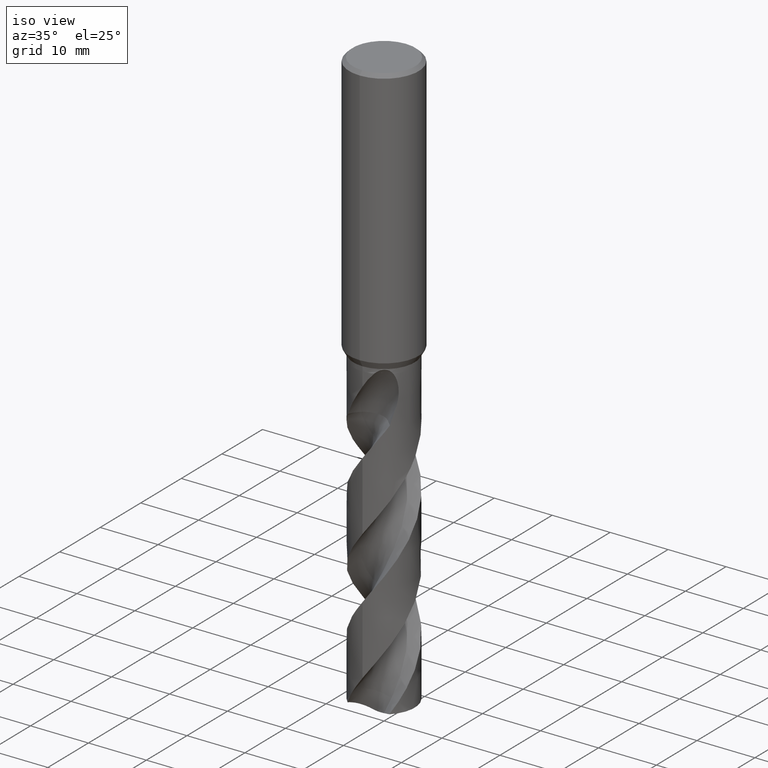
[diagram: clean part render]
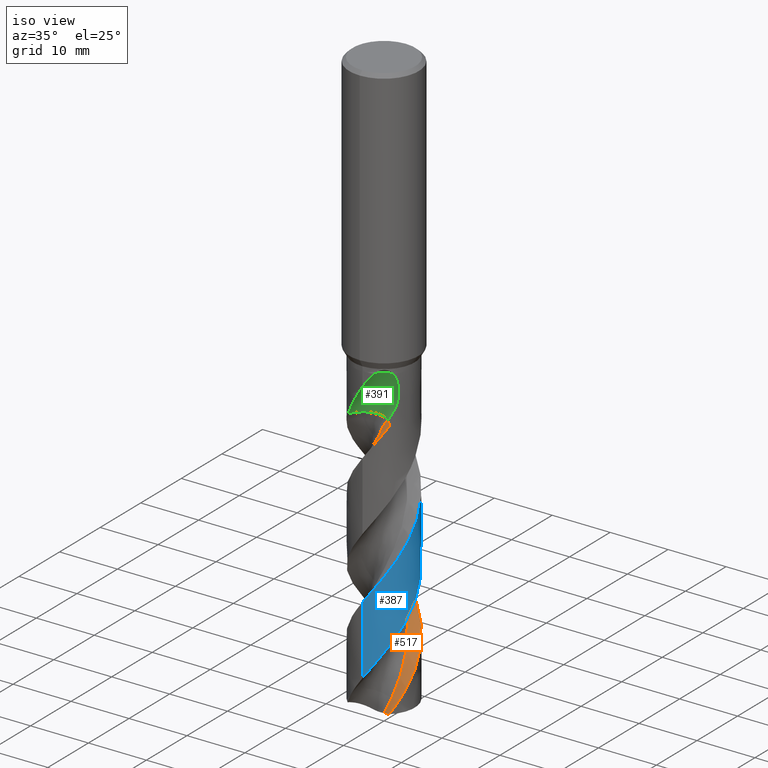
[diagram: same view with three faces highlighted in distinct colors, each labeled with its STEP entity id]
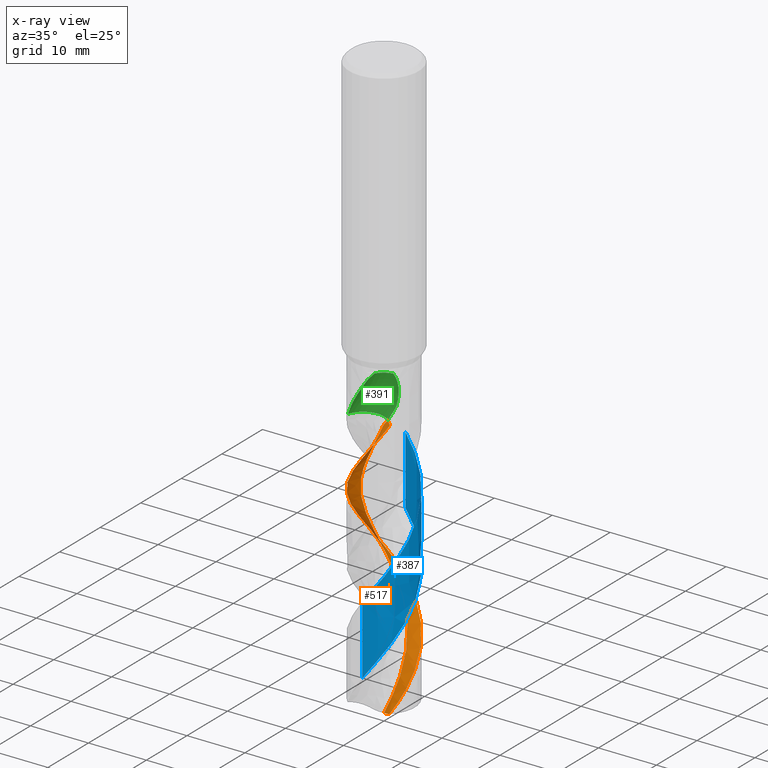
[diagram: x-ray of the same camera — body ghosted, the three highlighted faces saturated]
A machine part, iso view with three faces highlighted in distinct colors.
The next image is the same camera in x-ray (body ghosted, the three faces saturated) — at least one of them is partly hidden behind the body in this view.
Their STEP definitions:

[orange] entity #517 — the highlighted face is a freeform B-spline surface patch.
#279=EDGE_CURVE('',#337,#641,#770,.T.);
#337=VERTEX_POINT('',#836);
#383=VERTEX_POINT('',#884);
#437=VERTEX_POINT('',#946);
#449=VERTEX_POINT('',#959);
#459=EDGE_CURVE('',#641,#449,#970,.T.);
#467=EDGE_CURVE('',#437,#619,#980,.T.);
#487=EDGE_CURVE('',#449,#383,#1001,.T.);
#517=ADVANCED_FACE('',(#1032),#1033,.F.);
#525=EDGE_CURVE('',#337,#619,#1041,.T.);
#619=VERTEX_POINT('',#1145);
#639=EDGE_CURVE('',#383,#437,#1167,.T.);
#641=VERTEX_POINT('',#1169);
#770=LINE('',#1320,#1321);
#836=CARTESIAN_POINT('',(2.49844395776474,-2.62488937223527,-55.0186));
#884=CARTESIAN_POINT('',(-8.97384524235371E-013,5.29996783547603,-83.0009368325366));
#946=CARTESIAN_POINT('',(3.63224074592308,-3.85964080759546,-100.070957758389));
#959=CARTESIAN_POINT('',(-6.31118574325538E-011,-5.29992549214173,-60.52892376531));
#970=B_SPLINE_CURVE_WITH_KNOTS('',3,(#2545,#2546,#2547,#2548,#2549,#2550,#2551,#2552,#2553,#2554,#2555,#2556,#2557,#2558,#2559,#2560,#2561,#2562,#2563,#2564,#2565,#2566,#2567,#2568,#2569,#2570,#2571,#2572,#2573,#2574,#2575,#2576,#2577,#2578,#2579,#2580,#2581,#2582,#2583,#2584,#2585,#2586,#2587,#2588,#2589,#2590,#2591,#2592,#2593,#2594,#2595,#2596,#2597,#2598,#2599,#2600,#2601,#2602,#2603,#2604,#2605,#2606,#2607,#2608,#2609,#2610,#2611,#2612,#2613,#2614,#2615,#2616,#2617,#2618,#2619,#2620,#2621,#2622,#2623,#2624,#2625,#2626,#2627,#2628,#2629,#2630,#2631,#2632,#2633,#2634,#2635,#2636,#2637,#2638),.UNSPECIFIED.,.F.,.F.,(4,2,2,2,2,2,2,2,2,2,2,2,2,2,2,2,2,2,2,2,2,2,2,2,2,2,2,2,2,2,2,2,2,2,2,2,2,2,2,2,2,2,2,2,2,2,4),(0.0,0.218040525332034,0.351695997499347,0.43420440163241,1.00837514066623,1.21070875735872,1.34069300474606,1.46311228620216,1.6277121310094,1.81087175579092,1.8345975468881,2.53011548876063,2.99050764574581,3.45321075597241,3.94792191816326,5.323261440157,5.64325979624026,8.14920172001534,8.87782828307589,9.5995359762358,10.3276719663838,11.7730522334291,14.3491649685006,14.8533167191767,16.6631986016928,19.586134671876,20.8142375223747,23.7009848509501,24.4298834558585,27.3216419819544,28.7783965270768,29.9223634945841,32.4186355387172,33.9202595182033,36.5243901568661,36.7648644969449,38.5507803348733,41.4746778431797,43.919180748855,43.9776744642757,47.3019320082786,47.834573830012,49.7431909282304,50.5449612065786,51.9399930822552,54.0450223605506,56.1608949373774),.UNSPECIFIED.);
#980=B_SPLINE_CURVE_WITH_KNOTS('',3,(#2650,#2651,#2652,#2653,#2654,#2655,#2656,#2657),.UNSPECIFIED.,.F.,.F.,(4,2,2,4),(0.0,2.35692417237144,3.51239813350223,4.65911612024439),.UNSPECIFIED.);
#1001=B_SPLINE_CURVE_WITH_KNOTS('',3,(#2726,#2727,#2728,#2729,#2730,#2731,#2732,#2733,#2734,#2735,#2736,#2737,#2738,#2739,#2740,#2741,#2742,#2743,#2744,#2745,#2746,#2747,#2748,#2749,#2750,#2751,#2752,#2753,#2754,#2755,#2756,#2757,#2758,#2759,#2760,#2761,#2762,#2763,#2764,#2765,#2766,#2767,#2768,#2769,#2770,#2771,#2772,#2773,#2774,#2775,#2776,#2777,#2778,#2779,#2780,#2781,#2782,#2783,#2784,#2785,#2786,#2787,#2788,#2789,#2790,#2791,#2792,#2793,#2794,#2795,#2796,#2797,#2798,#2799,#2800,#2801,#2802,#2803,#2804,#2805,#2806,#2807,#2808,#2809,#2810,#2811,#2812,#2813,#2814,#2815,#2816,#2817,#2818,#2819),.UNSPECIFIED.,.F.,.F.,(4,2,2,2,2,2,2,2,2,2,2,2,2,2,2,2,2,2,2,2,2,2,2,2,2,2,2,2,2,2,2,2,2,2,2,2,2,2,2,2,2,2,2,2,2,2,4),(0.0,0.218040525332034,0.351695997499347,0.43420440163241,1.00837514066623,1.21070875735872,1.34069300474606,1.46311228620216,1.6277121310094,1.81087175579092,1.8345975468881,2.53011548876063,2.99050764574581,3.45321075597241,3.94792191816326,5.323261440157,5.64325979624026,8.14920172001534,8.87782828307589,9.5995359762358,10.3276719663838,11.7730522334291,14.3491649685006,14.8533167191767,16.6631986016928,19.586134671876,20.8142375223747,23.7009848509501,24.4298834558585,27.3216419819544,28.7783965270768,29.9223634945841,32.4186355387172,33.9202595182033,36.5243901568661,36.7648644969449,38.5507803348733,41.4746778431797,43.919180748855,43.9776744642757,47.3019320082786,47.834573830012,49.7431909282304,50.5449612065786,51.9399930822552,54.0450223605506,56.1608949373774),.UNSPECIFIED.);
#1032=FACE_OUTER_BOUND('',#2918,.T.);
#1033=B_SPLINE_SURFACE_WITH_KNOTS('',3,3,((#2919,#2920,#2921,#2922,#2923,#2924,#2925,#2926,#2927,#2928,#2929,#2930,#2931,#2932,#2933,#2934,#2935,#2936,#2937,#2938,#2939,#2940,#2941,#2942,#2943,#2944,#2945,#2946,#2947,#2948,#2949,#2950,#2951,#2952,#2953,#2954,#2955,#2956,#2957,#2958,#2959,#2960,#2961,#2962,#2963,#2964,#2965,#2966,#2967,#2968,#2969,#2970,#2971,#2972,#2973,#2974),(#2975,#2976,#2977,#2978,#2979,#2980,#2981,#2982,#2983,#2984,#2985,#2986,#2987,#2988,#2989,#2990,#2991,#2992,#2993,#2994,#2995,#2996,#2997,#2998,#2999,#3000,#3001,#3002,#3003,#3004,#3005,#3006,#3007,#3008,#3009,#3010,#3011,#3012,#3013,#3014,#3015,#3016,#3017,#3018,#3019,#3020,#3021,#3022,#3023,#3024,#3025,#3026,#3027,#3028,#3029,#3030),(#3031,#3032,#3033,#3034,#3035,#3036,#3037,#3038,#3039,#3040,#3041,#3042,#3043,#3044,#3045,#3046,#3047,#3048,#3049,#3050,#3051,#3052,#3053,#3054,#3055,#3056,#3057,#3058,#3059,#3060,#3061,#3062,#3063,#3064,#3065,#3066,#3067,#3068,#3069,#3070,#3071,#3072,#3073,#3074,#3075,#3076,#3077,#3078,#3079,#3080,#3081,#3082,#3083,#3084,#3085,#3086),(#3087,#3088,#3089,#3090,#3091,#3092,#3093,#3094,#3095,#3096,#3097,#3098,#3099,#3100,#3101,#3102,#3103,#3104,#3105,#3106,#3107,#3108,#3109,#3110,#3111,#3112,#3113,#3114,#3115,#3116,#3117,#3118,#3119,#3120,#3121,#3122,#3123,#3124,#3125,#3126,#3127,#3128,#3129,#3130,#3131,#3132,#3133,#3134,#3135,#3136,#3137,#3138,#3139,#3140,#3141,#3142)),.UNSPECIFIED.,.F.,.F.,.F.,(4,4),(4,1,2,1,2,2,2,2,2,1,2,1,2,1,2,1,2,1,2,1,2,1,2,1,2,1,2,1,2,1,2,1,2,2,4),(2.31063811747395E-016,7.06666667),(0.0,1.05697191436646,2.11394382873293,3.17091574309939,4.22788765746586,6.34183148619878,8.45577531493171,10.5697191436646,12.6836629723976,14.7976068011305,16.9115506298634,19.0254944585963,21.1394382873293,23.2533821160622,25.3673259447951,27.4812697735281,29.595213602261,31.7091574309939,33.8231012597268,35.9370450884598,38.0509889171927,40.1649327459256,42.2788765746586,44.3928204033915,46.5067642321244,48.6207080608573,50.7346518895903,52.8485957183232,54.9625395470561,57.076483375789,59.190427204522,61.3043710332549,63.4183148619878,65.5322586907208,67.6462025194537),.UNSPECIFIED.);
#1041=B_SPLINE_CURVE_WITH_KNOTS('',3,(#3154,#3155,#3156,#3157,#3158,#3159,#3160,#3161,#3162,#3163,#3164,#3165,#3166,#3167,#3168,#3169,#3170,#3171,#3172,#3173,#3174,#3175,#3176,#3177,#3178,#3179,#3180,#3181,#3182,#3183,#3184,#3185,#3186,#3187,#3188,#3189,#3190,#3191,#3192,#3193,#3194,#3195,#3196,#3197,#3198,#3199,#3200,#3201,#3202,#3203,#3204,#3205,#3206,#3207,#3208,#3209),.UNSPECIFIED.,.F.,.F.,(4,1,2,1,2,2,2,2,2,1,2,1,2,1,2,1,2,1,2,1,2,1,2,1,2,1,2,1,2,1,2,1,2,2,4),(0.0,1.05697191436646,2.11394382873293,3.17091574309939,4.22788765746586,6.34183148619878,8.45577531493171,10.5697191436646,12.6836629723976,14.7976068011305,16.9115506298634,19.0254944585963,21.1394382873293,23.2533821160622,25.3673259447951,27.4812697735281,29.595213602261,31.7091574309939,33.8231012597268,35.9370450884598,38.0509889171927,40.1649327459256,42.2788765746586,44.3928204033915,46.5067642321244,48.6207080608573,50.7346518895903,52.8485957183232,54.9625395470561,57.076483375789,59.190427204522,61.3043710332549,63.4183148619878,65.5322586907208,67.6462025194537),.UNSPECIFIED.);
#1145=CARTESIAN_POINT('',(1.92643973439241,-2.73193693311974,-100.783301920864));
#1167=B_SPLINE_CURVE_WITH_KNOTS('',3,(#4663,#4664,#4665,#4666,#4667,#4668,#4669,#4670,#4671,#4672,#4673,#4674,#4675,#4676,#4677,#4678,#4679,#4680,#4681,#4682,#4683,#4684,#4685,#4686,#4687,#4688,#4689,#4690,#4691,#4692,#4693,#4694,#4695,#4696,#4697,#4698,#4699,#4700,#4701,#4702,#4703,#4704,#4705,#4706,#4707,#4708,#4709,#4710,#4711,#4712,#4713,#4714,#4715,#4716,#4717,#4718,#4719,#4720,#4721,#4722,#4723,#4724,#4725,#4726,#4727,#4728,#4729,#4730,#4731,#4732,#4733,#4734,#4735,#4736,#4737,#4738,#4739,#4740,#4741,#4742,#4743,#4744,#4745,#4746,#4747,#4748,#4749,#4750,#4751,#4752,#4753,#4754,#4755,#4756),.UNSPECIFIED.,.F.,.F.,(4,2,2,2,2,2,2,2,2,2,2,2,2,2,2,2,2,2,2,2,2,2,2,2,2,2,2,2,2,2,2,2,2,2,2,2,2,2,2,2,2,2,2,2,2,2,4),(0.0,0.218040525332034,0.351695997499347,0.43420440163241,1.00837514066623,1.21070875735872,1.34069300474606,1.46311228620216,1.6277121310094,1.81087175579092,1.8345975468881,2.53011548876063,2.99050764574581,3.45321075597241,3.94792191816326,5.323261440157,5.64325979624026,8.14920172001534,8.87782828307589,9.5995359762358,10.3276719663838,11.7730522334291,14.3491649685006,14.8533167191767,16.6631986016928,19.586134671876,20.8142375223747,23.7009848509501,24.4298834558585,27.3216419819544,28.7783965270768,29.9223634945841,32.4186355387172,33.9202595182033,36.5243901568661,36.7648644969449,38.5507803348733,41.4746778431797,43.919180748855,43.9776744642757,47.3019320082786,47.834573830012,49.7431909282304,50.5449612065786,51.9399930822552,54.0450223605506,56.1608949373774),.UNSPECIFIED.);
#1169=CARTESIAN_POINT('',(3.6838498797612,-3.81029529409031,-55.0186));
#1320=CARTESIAN_POINT('',(2.49844395783545,-2.62488937216456,-55.0186));
#1321=VECTOR('',#5236,1.0);
#2545=CARTESIAN_POINT('',(3.6838498797612,-3.81029529409031,-55.0186));
#2546=CARTESIAN_POINT('',(3.65412128156404,-3.83903749944103,-55.0783704269261));
#2547=CARTESIAN_POINT('',(3.62397815586187,-3.86750863760628,-55.1380930449425));
#2548=CARTESIAN_POINT('',(3.57454685146286,-3.91310265677252,-55.2342899993733));
#2549=CARTESIAN_POINT('',(3.5555945044079,-3.93033260399906,-55.2707752405509));
#2550=CARTESIAN_POINT('',(3.52461328961576,-3.95808787285775,-55.3297268347942));
#2551=CARTESIAN_POINT('',(3.51271934957396,-3.96864761128063,-55.3521980050996));
#2552=CARTESIAN_POINT('',(3.41743516461957,-4.05247584420724,-55.5309011608467));
#2553=CARTESIAN_POINT('',(3.33203894694126,-4.12306464553224,-55.6829795639761));
#2554=CARTESIAN_POINT('',(3.20989975722256,-4.21749682493276,-55.8902838916544));
#2555=CARTESIAN_POINT('',(3.17769957859073,-4.2418142528713,-55.9440624693209));
#2556=CARTESIAN_POINT('',(3.12409639424877,-4.28133398329262,-56.0323460379414));
#2557=CARTESIAN_POINT('',(3.10298309484456,-4.29666155484296,-56.0668121668954));
#2558=CARTESIAN_POINT('',(3.06168119038575,-4.32618041522154,-56.1337157111107));
#2559=CARTESIAN_POINT('',(3.04153043620143,-4.34037147399588,-56.1661218488846));
#2560=CARTESIAN_POINT('',(2.99399957352339,-4.3733501852761,-56.2420968397073));
#2561=CARTESIAN_POINT('',(2.96655602756104,-4.3920123702097,-56.2856080478892));
#2562=CARTESIAN_POINT('',(2.90819517344424,-4.43090199483921,-56.3776029939717));
#2563=CARTESIAN_POINT('',(2.87728438210479,-4.45103581393425,-56.426016604218));
#2564=CARTESIAN_POINT('',(2.84218492164735,-4.47338093726219,-56.4808129548541));
#2565=CARTESIAN_POINT('',(2.83819334301469,-4.47591453337607,-56.4870425223112));
#2566=CARTESIAN_POINT('',(2.71569382203866,-4.55343745656097,-56.6782162454629));
#2567=CARTESIAN_POINT('',(2.5951627298654,-4.62312617934586,-56.8655560712853));
#2568=CARTESIAN_POINT('',(2.3924010793329,-4.73010548053673,-57.1761371790157));
#2569=CARTESIAN_POINT('',(2.31063786354884,-4.77057676300321,-57.300206153321));
#2570=CARTESIAN_POINT('',(2.14485353942168,-4.84738504978593,-57.5486483217168));
#2571=CARTESIAN_POINT('',(2.06064628977012,-4.88378221442732,-57.6732864657703));
#2572=CARTESIAN_POINT('',(1.88426401465003,-4.95462955266712,-57.9306362107173));
#2573=CARTESIAN_POINT('',(1.79232955307235,-4.98862423334285,-58.0626313037402));
#2574=CARTESIAN_POINT('',(1.44048923578541,-5.10771884486206,-58.5628706369061));
#2575=CARTESIAN_POINT('',(1.17555877215233,-5.17509760692783,-58.9288569651076));
#2576=CARTESIAN_POINT('',(0.844300194474062,-5.23262571607198,-59.3828031971793));
#2577=CARTESIAN_POINT('',(0.781633895227606,-5.24235167952681,-59.4685464624602));
#2578=CARTESIAN_POINT('',(0.227325002859445,-5.31823924960598,-60.2251418754911));
#2579=CARTESIAN_POINT('',(-0.271733665099285,-5.31623242515873,-60.891718783525));
#2580=CARTESIAN_POINT('',(-0.906472899912916,-5.2238318284839,-61.7571082675678));
#2581=CARTESIAN_POINT('',(-1.04851997544297,-5.19718261906045,-61.9519833453638));
#2582=CARTESIAN_POINT('',(-1.32869499309043,-5.13266834586666,-62.3400867935429));
#2583=CARTESIAN_POINT('',(-1.46675084108478,-5.09493447830904,-62.5332090550833));
#2584=CARTESIAN_POINT('',(-1.74067579800041,-5.00800729585924,-62.9211947521807));
#2585=CARTESIAN_POINT('',(-1.87643049781674,-4.9587415317076,-63.1159470701348));
#2586=CARTESIAN_POINT('',(-2.2752279860155,-4.79528485339834,-63.6974698383948));
#2587=CARTESIAN_POINT('',(-2.53106024285165,-4.66530043263093,-64.0833236460881));
#2588=CARTESIAN_POINT('',(-3.20990146851027,-4.24810064832287,-65.1598097014721));
#2589=CARTESIAN_POINT('',(-3.60416003009745,-3.9192513425105,-65.8452126382855));
#2590=CARTESIAN_POINT('',(-4.01218226091907,-3.46435124997787,-66.6690986093774));
#2591=CARTESIAN_POINT('',(-4.07681308151482,-3.38805566872773,-66.8038738666714));
#2592=CARTESIAN_POINT('',(-4.36333714098627,-3.02975131814709,-67.42317142508));
#2593=CARTESIAN_POINT('',(-4.55844048782894,-2.72741367453037,-67.9074222507144));
#2594=CARTESIAN_POINT('',(-4.98479557836813,-1.89133534725175,-69.1742164913673));
#2595=CARTESIAN_POINT('',(-5.16156179465499,-1.33538380086698,-69.9498884516753));
#2596=CARTESIAN_POINT('',(-5.27986300097388,-0.521255622133387,-71.0612701319763));
#2597=CARTESIAN_POINT('',(-5.29824752412399,-0.278143882450336,-71.3896327250039));
#2598=CARTESIAN_POINT('',(-5.30356403565948,0.538195163094035,-72.4906953273579));
#2599=CARTESIAN_POINT('',(-5.21443232608952,1.10756182058278,-73.2586521285603));
#2600=CARTESIAN_POINT('',(-4.99108749982074,1.78868984760675,-74.2265548473263));
#2601=CARTESIAN_POINT('',(-4.94044981791236,1.92415028206357,-74.4215547386977));
#2602=CARTESIAN_POINT('',(-4.66160958923635,2.5861227927893,-75.3904265941534));
#2603=CARTESIAN_POINT('',(-4.35458558531149,3.07502396262149,-76.1595142603993));
#2604=CARTESIAN_POINT('',(-3.78445259471402,3.72167587330011,-77.3236520802319));
#2605=CARTESIAN_POINT('',(-3.57597632717836,3.9224387982958,-77.7126658560105));
#2606=CARTESIAN_POINT('',(-3.17619079031021,4.24887284565561,-78.4084767960892));
#2607=CARTESIAN_POINT('',(-2.99141958425321,4.38091266772025,-78.7141242253332));
#2608=CARTESIAN_POINT('',(-2.37870605284555,4.76194951070763,-79.6888478227026));
#2609=CARTESIAN_POINT('',(-1.92369559942798,4.9633138602704,-80.3542780528645));
#2610=CARTESIAN_POINT('',(-1.1603391980137,5.17996820333021,-81.4240322394902));
#2611=CARTESIAN_POINT('',(-0.867473717209273,5.23695537129451,-81.8252652816579));
#2612=CARTESIAN_POINT('',(-0.0584695188599431,5.32471891790874,-82.9247714124889));
#2613=CARTESIAN_POINT('',(0.460354524221288,5.30516578322522,-83.6175531333135));
#2614=CARTESIAN_POINT('',(1.01532903496005,5.20202562944076,-84.3787142356747));
#2615=CARTESIAN_POINT('',(1.06211005663505,5.19267616382,-84.4430476986283));
#2616=CARTESIAN_POINT('',(1.45519826475422,5.10858202401198,-84.9854916655036));
#2617=CARTESIAN_POINT('',(1.79336350307767,4.99990551011287,-85.4635526341349));
#2618=CARTESIAN_POINT('',(2.64976503999885,4.62653970855369,-86.7246752364971));
#2619=CARTESIAN_POINT('',(3.13965572632371,4.30909612375823,-87.5007015304184));
#2620=CARTESIAN_POINT('',(3.92658548179255,3.59256956612382,-88.938574859068));
#2621=CARTESIAN_POINT('',(4.238663478231,3.21852206584366,-89.5891042684072));
#2622=CARTESIAN_POINT('',(4.50175641246716,2.79716427653447,-90.2589888762404));
#2623=CARTESIAN_POINT('',(4.50787226188193,2.78729739576378,-90.2746442179557));
#2624=CARTESIAN_POINT('',(4.85969040949562,2.21551202604885,-91.1801768200742));
#2625=CARTESIAN_POINT('',(5.09768145676609,1.59351677773577,-92.0654016916225));
#2626=CARTESIAN_POINT('',(5.23409432898314,0.839824981919091,-93.0980901672262));
#2627=CARTESIAN_POINT('',(5.24980558608804,0.735241888017642,-93.2406206571551));
#2628=CARTESIAN_POINT('',(5.30742681912847,0.254154511118522,-93.8946102165058));
#2629=CARTESIAN_POINT('',(5.31203115175467,-0.125836800993687,-94.4055295945772));
#2630=CARTESIAN_POINT('',(5.26094609829787,-0.661583061659649,-95.131607695189));
#2631=CARTESIAN_POINT('',(5.23869756754374,-0.819344470265785,-95.3462004914325));
#2632=CARTESIAN_POINT('',(5.15833662995106,-1.24831539687186,-95.9345156568214));
#2633=CARTESIAN_POINT('',(5.08606655097932,-1.51605560719203,-96.3072295653683));
#2634=CARTESIAN_POINT('',(4.85332221056996,-2.17015142058062,-97.245567688016));
#2635=CARTESIAN_POINT('',(4.66723175875554,-2.54592832315239,-97.8085869791777));
#2636=CARTESIAN_POINT('',(4.20907032861762,-3.24813159364783,-98.9394474099009));
#2637=CARTESIAN_POINT('',(3.93833554958375,-3.57157885186936,-99.5040533364225));
#2638=CARTESIAN_POINT('',(3.63224074592309,-3.85964080759543,-100.070957758389));
#2650=CARTESIAN_POINT('',(5.81383459137618,-4.73067937447867,-99.2719222995232));
#2651=CARTESIAN_POINT('',(5.09661743496441,-4.52851823604253,-99.5208456202025));
#2652=CARTESIAN_POINT('',(4.40147117975703,-4.25671956387159,-99.7731145686999));
#2653=CARTESIAN_POINT('',(3.41750805425349,-3.74980501739249,-100.153904132973));
#2654=CARTESIAN_POINT('',(3.10261397134985,-3.56682589169144,-100.279803215787));
#2655=CARTESIAN_POINT('',(2.49592414707923,-3.17059685201907,-100.53184051643));
#2656=CARTESIAN_POINT('',(2.20512220648295,-2.95819958724898,-100.657545257233));
#2657=CARTESIAN_POINT('',(1.92643973446543,-2.73193693305451,-100.783301920868));
#2726=CARTESIAN_POINT('',(3.6838498797612,-3.81029529409031,-55.0186));
#2727=CARTESIAN_POINT('',(3.65412128156404,-3.83903749944103,-55.0783704269261));
#2728=CARTESIAN_POINT('',(3.62397815586187,-3.86750863760628,-55.1380930449425));
#2729=CARTESIAN_POINT('',(3.57454685146286,-3.91310265677252,-55.2342899993733));
#2730=CARTESIAN_POINT('',(3.5555945044079,-3.93033260399906,-55.2707752405509));
#2731=CARTESIAN_POINT('',(3.52461328961576,-3.95808787285775,-55.3297268347942));
#2732=CARTESIAN_POINT('',(3.51271934957396,-3.96864761128063,-55.3521980050996));
#2733=CARTESIAN_POINT('',(3.41743516461957,-4.05247584420724,-55.5309011608467));
#2734=CARTESIAN_POINT('',(3.33203894694126,-4.12306464553224,-55.6829795639761));
#2735=CARTESIAN_POINT('',(3.20989975722256,-4.21749682493276,-55.8902838916544));
#2736=CARTESIAN_POINT('',(3.17769957859073,-4.2418142528713,-55.9440624693209));
#2737=CARTESIAN_POINT('',(3.12409639424877,-4.28133398329262,-56.0323460379414));
#2738=CARTESIAN_POINT('',(3.10298309484456,-4.29666155484296,-56.0668121668954));
#2739=CARTESIAN_POINT('',(3.06168119038575,-4.32618041522154,-56.1337157111107));
#2740=CARTESIAN_POINT('',(3.04153043620143,-4.34037147399588,-56.1661218488846));
#2741=CARTESIAN_POINT('',(2.99399957352339,-4.3733501852761,-56.2420968397073));
#2742=CARTESIAN_POINT('',(2.96655602756104,-4.3920123702097,-56.2856080478892));
#2743=CARTESIAN_POINT('',(2.90819517344424,-4.43090199483921,-56.3776029939717));
#2744=CARTESIAN_POINT('',(2.87728438210479,-4.45103581393425,-56.426016604218));
#2745=CARTESIAN_POINT('',(2.84218492164735,-4.47338093726219,-56.4808129548541));
#2746=CARTESIAN_POINT('',(2.83819334301469,-4.47591453337607,-56.4870425223112));
#2747=CARTESIAN_POINT('',(2.71569382203866,-4.55343745656097,-56.6782162454629));
#2748=CARTESIAN_POINT('',(2.5951627298654,-4.62312617934586,-56.8655560712853));
#2749=CARTESIAN_POINT('',(2.3924010793329,-4.73010548053673,-57.1761371790157));
#2750=CARTESIAN_POINT('',(2.31063786354884,-4.77057676300321,-57.300206153321));
#2751=CARTESIAN_POINT('',(2.14485353942168,-4.84738504978593,-57.5486483217168));
#2752=CARTESIAN_POINT('',(2.06064628977012,-4.88378221442732,-57.6732864657703));
#2753=CARTESIAN_POINT('',(1.88426401465003,-4.95462955266712,-57.9306362107173));
#2754=CARTESIAN_POINT('',(1.79232955307235,-4.98862423334285,-58.0626313037402));
#2755=CARTESIAN_POINT('',(1.44048923578541,-5.10771884486206,-58.5628706369061));
#2756=CARTESIAN_POINT('',(1.17555877215233,-5.17509760692783,-58.9288569651076));
#2757=CARTESIAN_POINT('',(0.844300194474062,-5.23262571607198,-59.3828031971793));
#2758=CARTESIAN_POINT('',(0.781633895227606,-5.24235167952681,-59.4685464624602));
#2759=CARTESIAN_POINT('',(0.227325002859445,-5.31823924960598,-60.2251418754911));
#2760=CARTESIAN_POINT('',(-0.271733665099285,-5.31623242515873,-60.891718783525));
#2761=CARTESIAN_POINT('',(-0.906472899912916,-5.2238318284839,-61.7571082675678));
#2762=CARTESIAN_POINT('',(-1.04851997544297,-5.19718261906045,-61.9519833453638));
#2763=CARTESIAN_POINT('',(-1.32869499309043,-5.13266834586666,-62.3400867935429));
#2764=CARTESIAN_POINT('',(-1.46675084108478,-5.09493447830904,-62.5332090550833));
#2765=CARTESIAN_POINT('',(-1.74067579800041,-5.00800729585924,-62.9211947521807));
#2766=CARTESIAN_POINT('',(-1.87643049781674,-4.9587415317076,-63.1159470701348));
#2767=CARTESIAN_POINT('',(-2.2752279860155,-4.79528485339834,-63.6974698383948));
#2768=CARTESIAN_POINT('',(-2.53106024285165,-4.66530043263093,-64.0833236460881));
#2769=CARTESIAN_POINT('',(-3.20990146851027,-4.24810064832287,-65.1598097014721));
#2770=CARTESIAN_POINT('',(-3.60416003009745,-3.9192513425105,-65.8452126382855));
#2771=CARTESIAN_POINT('',(-4.01218226091907,-3.46435124997787,-66.6690986093774));
#2772=CARTESIAN_POINT('',(-4.07681308151482,-3.38805566872773,-66.8038738666714));
#2773=CARTESIAN_POINT('',(-4.36333714098627,-3.02975131814709,-67.42317142508));
#2774=CARTESIAN_POINT('',(-4.55844048782894,-2.72741367453037,-67.9074222507144));
#2775=CARTESIAN_POINT('',(-4.98479557836813,-1.89133534725175,-69.1742164913673));
#2776=CARTESIAN_POINT('',(-5.16156179465499,-1.33538380086698,-69.9498884516753));
#2777=CARTESIAN_POINT('',(-5.27986300097388,-0.521255622133387,-71.0612701319763));
#2778=CARTESIAN_POINT('',(-5.29824752412399,-0.278143882450336,-71.3896327250039));
#2779=CARTESIAN_POINT('',(-5.30356403565948,0.538195163094035,-72.4906953273579));
#2780=CARTESIAN_POINT('',(-5.21443232608952,1.10756182058278,-73.2586521285603));
#2781=CARTESIAN_POINT('',(-4.99108749982074,1.78868984760675,-74.2265548473263));
#2782=CARTESIAN_POINT('',(-4.94044981791236,1.92415028206357,-74.4215547386977));
#2783=CARTESIAN_POINT('',(-4.66160958923635,2.5861227927893,-75.3904265941534));
#2784=CARTESIAN_POINT('',(-4.35458558531149,3.07502396262149,-76.1595142603993));
#2785=CARTESIAN_POINT('',(-3.78445259471402,3.72167587330011,-77.3236520802319));
#2786=CARTESIAN_POINT('',(-3.57597632717836,3.9224387982958,-77.7126658560105));
#2787=CARTESIAN_POINT('',(-3.17619079031021,4.24887284565561,-78.4084767960892));
#2788=CARTESIAN_POINT('',(-2.99141958425321,4.38091266772025,-78.7141242253332));
#2789=CARTESIAN_POINT('',(-2.37870605284555,4.76194951070763,-79.6888478227026));
#2790=CARTESIAN_POINT('',(-1.92369559942798,4.9633138602704,-80.3542780528645));
#2791=CARTESIAN_POINT('',(-1.1603391980137,5.17996820333021,-81.4240322394902));
#2792=CARTESIAN_POINT('',(-0.867473717209273,5.23695537129451,-81.8252652816579));
#2793=CARTESIAN_POINT('',(-0.0584695188599431,5.32471891790874,-82.9247714124889));
#2794=CARTESIAN_POINT('',(0.460354524221288,5.30516578322522,-83.6175531333135));
#2795=CARTESIAN_POINT('',(1.01532903496005,5.20202562944076,-84.3787142356747));
#2796=CARTESIAN_POINT('',(1.06211005663505,5.19267616382,-84.4430476986283));
#2797=CARTESIAN_POINT('',(1.45519826475422,5.10858202401198,-84.9854916655036));
#2798=CARTESIAN_POINT('',(1.79336350307767,4.99990551011287,-85.4635526341349));
#2799=CARTESIAN_POINT('',(2.64976503999885,4.62653970855369,-86.7246752364971));
#2800=CARTESIAN_POINT('',(3.13965572632371,4.30909612375823,-87.5007015304184));
#2801=CARTESIAN_POINT('',(3.92658548179255,3.59256956612382,-88.938574859068));
#2802=CARTESIAN_POINT('',(4.238663478231,3.21852206584366,-89.5891042684072));
#2803=CARTESIAN_POINT('',(4.50175641246716,2.79716427653447,-90.2589888762404));
#2804=CARTESIAN_POINT('',(4.50787226188193,2.78729739576378,-90.2746442179557));
#2805=CARTESIAN_POINT('',(4.85969040949562,2.21551202604885,-91.1801768200742));
#2806=CARTESIAN_POINT('',(5.09768145676609,1.59351677773577,-92.0654016916225));
#2807=CARTESIAN_POINT('',(5.23409432898314,0.839824981919091,-93.0980901672262));
#2808=CARTESIAN_POINT('',(5.24980558608804,0.735241888017642,-93.2406206571551));
#2809=CARTESIAN_POINT('',(5.30742681912847,0.254154511118522,-93.8946102165058));
#2810=CARTESIAN_POINT('',(5.31203115175467,-0.125836800993687,-94.4055295945772));
#2811=CARTESIAN_POINT('',(5.26094609829787,-0.661583061659649,-95.131607695189));
#2812=CARTESIAN_POINT('',(5.23869756754374,-0.819344470265785,-95.3462004914325));
#2813=CARTESIAN_POINT('',(5.15833662995106,-1.24831539687186,-95.9345156568214));
#2814=CARTESIAN_POINT('',(5.08606655097932,-1.51605560719203,-96.3072295653683));
#2815=CARTESIAN_POINT('',(4.85332221056996,-2.17015142058062,-97.245567688016));
#2816=CARTESIAN_POINT('',(4.66723175875554,-2.54592832315239,-97.8085869791777));
#2817=CARTESIAN_POINT('',(4.20907032861762,-3.24813159364783,-98.9394474099009));
#2818=CARTESIAN_POINT('',(3.93833554958375,-3.57157885186936,-99.5040533364225));
#2819=CARTESIAN_POINT('',(3.63224074592309,-3.85964080759543,-100.070957758389));
#2918=EDGE_LOOP('',(#5566,#5567,#5568,#5569,#5570,#5571));
#2919=CARTESIAN_POINT('',(2.49844395783545,-2.62488937216456,-55.0186));
#2920=CARTESIAN_POINT('',(2.24909412560232,-2.61260812428297,-55.2629746954904));
#2921=CARTESIAN_POINT('',(1.85197539752587,-2.63855177385447,-55.7495123488136));
#2922=CARTESIAN_POINT('',(1.65737290749432,-2.75698953642696,-56.2356067189668));
#2923=CARTESIAN_POINT('',(1.54716909616829,-2.93395254404715,-56.7281457115416));
#2924=CARTESIAN_POINT('',(1.39410674556367,-3.08169337270698,-57.2216184562587));
#2925=CARTESIAN_POINT('',(1.17713443232074,-3.16259789349587,-57.7120377860694));
#2926=CARTESIAN_POINT('',(0.821342101647347,-3.23587051557121,-58.4426566049961));
#2927=CARTESIAN_POINT('',(0.593323598996969,-3.27650315669591,-58.9303939849536));
#2928=CARTESIAN_POINT('',(0.150399726755623,-3.34626563953682,-59.9116290635929));
#2929=CARTESIAN_POINT('',(-0.080349490235978,-3.34770650573517,-60.4017366809573));
#2930=CARTESIAN_POINT('',(-0.536037150415574,-3.30317668903117,-61.3796432719813));
#2931=CARTESIAN_POINT('',(-0.761773095596525,-3.2556443264513,-61.8688991221384));
#2932=CARTESIAN_POINT('',(-1.19812863064167,-3.12418302266454,-62.8482595001352));
#2933=CARTESIAN_POINT('',(-1.40952574908957,-3.03300429818257,-63.3377062797921));
#2934=CARTESIAN_POINT('',(-1.81026422216882,-2.82017229131363,-64.3164743457747));
#2935=CARTESIAN_POINT('',(-2.18678085487371,-2.55102789137899,-65.2956922261115));
#2936=CARTESIAN_POINT('',(-2.50060945518253,-2.21407861713422,-66.2740491439934));
#2937=CARTESIAN_POINT('',(-2.78498530440847,-1.86250987763143,-67.253068966018));
#2938=CARTESIAN_POINT('',(-3.02417813594791,-1.46723618420797,-68.2325770719528));
#2939=CARTESIAN_POINT('',(-3.17726727300067,-1.03266637191089,-69.211009889743));
#2940=CARTESIAN_POINT('',(-3.29700803706295,-0.596235146304928,-70.1898897171669));
#2941=CARTESIAN_POINT('',(-3.35820065261483,-0.138152896046186,-71.1692787629735));
#2942=CARTESIAN_POINT('',(-3.3252448332268,0.321315977930028,-72.1476951131156));
#2943=CARTESIAN_POINT('',(-3.26098907800257,0.769217325861865,-73.1266257377308));
#2944=CARTESIAN_POINT('',(-3.13430357539791,1.21365487509881,-74.1060524984935));
#2945=CARTESIAN_POINT('',(-2.92065748871978,1.62179467895812,-75.0844716376792));
#2946=CARTESIAN_POINT('',(-2.68296332723709,2.0068320981055,-76.0633875885929));
#2947=CARTESIAN_POINT('',(-2.38943128196172,2.3637756776798,-77.0428045483006));
#2948=CARTESIAN_POINT('',(-2.03065269284733,2.65273098821297,-78.0212236318041));
#2949=CARTESIAN_POINT('',(-1.65903000684998,2.91089782265987,-79.0001432910726));
#2950=CARTESIAN_POINT('',(-1.24742102214934,3.12101873463454,-79.9795625544364));
#2951=CARTESIAN_POINT('',(-0.803128161938752,3.24276411221196,-80.9579817916448));
#2952=CARTESIAN_POINT('',(-0.359350228112736,3.33115824093725,-81.9369010945775));
#2953=CARTESIAN_POINT('',(0.101916691884659,3.35953739771709,-82.9163197382685));
#2954=CARTESIAN_POINT('',(0.557879733343997,3.29383656858783,-83.8947377001453));
#2955=CARTESIAN_POINT('',(1.00005879498875,3.19776151186963,-84.8736554194694));
#2956=CARTESIAN_POINT('',(1.43431878514513,3.03968477813327,-85.8530751453767));
#2957=CARTESIAN_POINT('',(1.82616841109774,2.79746152666559,-86.8314981558419));
#2958=CARTESIAN_POINT('',(2.19325595624842,2.53288127891702,-87.8104218176662));
#2959=CARTESIAN_POINT('',(2.52833339157441,2.21460219890493,-88.7898361534051));
#2960=CARTESIAN_POINT('',(2.7909482749106,1.83613058463386,-89.7682394548011));
#2961=CARTESIAN_POINT('',(3.02195907666686,1.44707714002392,-90.7471420923674));
#2962=CARTESIAN_POINT('',(3.20217894455262,1.02154484853793,-91.7265780615224));
#2963=CARTESIAN_POINT('',(3.29178280973746,0.569593512362207,-92.7050442122957));
#2964=CARTESIAN_POINT('',(3.34804220877312,0.120483189309063,-93.6840029843786));
#2965=CARTESIAN_POINT('',(3.3434036697101,-0.341641349322628,-94.6633525660449));
#2966=CARTESIAN_POINT('',(3.24604001892256,-0.791540080448149,-95.6416511674214));
#2967=CARTESIAN_POINT('',(3.11974269554969,-1.22555923582651,-96.6205161839066));
#2968=CARTESIAN_POINT('',(2.93086695738059,-1.64748739964883,-97.6001928707425));
#2969=CARTESIAN_POINT('',(2.65831045897395,-2.02064324800837,-98.5788888566835));
#2970=CARTESIAN_POINT('',(2.36441366145388,-2.3668694188022,-99.5577838118779));
#2971=CARTESIAN_POINT('',(2.19635926627573,-2.52330707134756,-100.046969837296));
#2972=CARTESIAN_POINT('',(1.8406939224426,-2.80322102805865,-101.024877174675));
#2973=CARTESIAN_POINT('',(1.63708311257554,-2.91792888996719,-101.514309898947));
#2974=CARTESIAN_POINT('',(1.4200457881462,-3.00680205078309,-102.003220679977));
#2975=CARTESIAN_POINT('',(4.16407326539367,-4.2905186797437,-55.0185999999974));
#2976=CARTESIAN_POINT('',(3.91330323201493,-4.27965763300772,-55.2630159555486));
#2977=CARTESIAN_POINT('',(3.47868275655495,-4.34425688204037,-55.7473292134789));
#2978=CARTESIAN_POINT('',(3.1683410493458,-4.56702652175723,-56.2304401957089));
#2979=CARTESIAN_POINT('',(2.89413706534904,-4.86913971530416,-56.725242281426));
#2980=CARTESIAN_POINT('',(2.58191272877965,-5.12145748242672,-57.221866045585));
#2981=CARTESIAN_POINT('',(2.22132220034227,-5.27537877278048,-57.7131309493974));
#2982=CARTESIAN_POINT('',(1.66254164845184,-5.44112265438577,-58.4409954243106));
#2983=CARTESIAN_POINT('',(1.28606152549619,-5.53397271858731,-58.9273371758001));
#2984=CARTESIAN_POINT('',(0.520512651679534,-5.67844720202789,-59.910379367705));
#2985=CARTESIAN_POINT('',(0.129177328794681,-5.69942624767659,-60.4010087825051));
#2986=CARTESIAN_POINT('',(-0.647949460949507,-5.6615561254296,-61.378121647161));
#2987=CARTESIAN_POINT('',(-1.03378224035344,-5.60102432318144,-61.8672141910847));
#2988=CARTESIAN_POINT('',(-1.78811953668926,-5.4103810182014,-62.8469218980793));
#2989=CARTESIAN_POINT('',(-2.15428574415139,-5.27365096863016,-63.3363594428647));
#2990=CARTESIAN_POINT('',(-2.85628435760043,-4.93700958960094,-64.3150089806155));
#2991=CARTESIAN_POINT('',(-3.51532623551665,-4.51563990703027,-65.294463700049));
#2992=CARTESIAN_POINT('',(-4.07629507066891,-3.97266639928173,-66.2723757059631));
#2993=CARTESIAN_POINT('',(-4.58867678000831,-3.38635529773487,-67.2514757261943));
#2994=CARTESIAN_POINT('',(-5.02671638694858,-2.73797024964974,-68.2314496941908));
#2995=CARTESIAN_POINT('',(-5.32405967916694,-2.01584783861125,-69.2094984056432));
#2996=CARTESIAN_POINT('',(-5.55902256293396,-1.27346930024505,-70.1883475690469));
#2997=CARTESIAN_POINT('',(-5.70148403837235,-0.504110657368355,-71.1681086083009));
#2998=CARTESIAN_POINT('',(-5.68604407081443,0.276616954872367,-72.1461276419767));
#2999=CARTESIAN_POINT('',(-5.60532674914803,1.05107625981237,-73.125067701675));
#3000=CARTESIAN_POINT('',(-5.4289144506041,1.81337172694333,-74.1048962315849));
#3001=CARTESIAN_POINT('',(-5.10311085522983,2.52305385404226,-75.0829204450264));
#3002=CARTESIAN_POINT('',(-4.71998712344416,3.20094180602843,-76.0618340371692));
#3003=CARTESIAN_POINT('',(-4.25399412176428,3.82948611425937,-77.0416453495413));
#3004=CARTESIAN_POINT('',(-3.67202316375354,4.35016275273052,-78.019668919903));
#3005=CARTESIAN_POINT('',(-3.05017543914454,4.81879621744762,-78.9985897585568));
#3006=CARTESIAN_POINT('',(-2.37203810102038,5.20911326991785,-79.9784044108791));
#3007=CARTESIAN_POINT('',(-1.63061552628056,5.45424215883012,-80.956429188298));
#3008=CARTESIAN_POINT('',(-0.873402361846433,5.63574375179226,-81.9353484912307));
#3009=CARTESIAN_POINT('',(-0.0958341766824843,5.72296629768971,-82.9151631120038));
#3010=CARTESIAN_POINT('',(0.681811154926981,5.65180429860857,-83.893184939425));
#3011=CARTESIAN_POINT('',(1.44853879571988,5.51599987591418,-84.8721014793637));
#3012=CARTESIAN_POINT('',(2.19630184933043,5.28563327722934,-85.8519174326916));
#3013=CARTESIAN_POINT('',(2.88092314770506,4.9100105825372,-86.8299470927489));
#3014=CARTESIAN_POINT('',(3.52973107091266,4.47946736998082,-87.8088778308856));
#3015=CARTESIAN_POINT('',(4.12340328723864,3.96978150875527,-88.7886850984154));
#3016=CARTESIAN_POINT('',(4.60122295206155,3.35213882664268,-89.7666801871679));
#3017=CARTESIAN_POINT('',(5.02431258645588,2.69845474056191,-90.7455663133386));
#3018=CARTESIAN_POINT('',(5.36524056606841,1.99419905092434,-91.7254023539536));
#3019=CARTESIAN_POINT('',(5.55667776086785,1.23712860040529,-92.7035135494328));
#3020=CARTESIAN_POINT('',(5.68341914737495,0.468850349204403,-93.6825194969313));
#3021=CARTESIAN_POINT('',(5.71493306089175,-0.312962177258231,-94.6622408828901));
#3022=CARTESIAN_POINT('',(5.58914011632561,-1.08366004515344,-95.6400389030562));
#3023=CARTESIAN_POINT('',(5.39989265543501,-1.83904167004598,-96.6187930573146));
#3024=CARTESIAN_POINT('',(5.11638037373723,-2.56841862957822,-97.5989476566001));
#3025=CARTESIAN_POINT('',(4.69045451572322,-3.22291762669467,-98.5774480450695));
#3026=CARTESIAN_POINT('',(4.21212189259188,-3.83691735360336,-99.5564680151154));
#3027=CARTESIAN_POINT('',(3.93902047596083,-4.11654153098382,-100.04558896656));
#3028=CARTESIAN_POINT('',(3.34705494940521,-4.62149843685967,-101.023225045299));
#3029=CARTESIAN_POINT('',(3.01793330101802,-4.83256237571284,-101.513013514216));
#3030=CARTESIAN_POINT('',(2.66976918148111,-5.00350719681501,-102.001813433019));
#3031=CARTESIAN_POINT('',(5.82970257301918,-5.95614798732737,-55.0186000000026));
#3032=CARTESIAN_POINT('',(5.57751231340066,-5.94670716580321,-55.2630571784816));
#3033=CARTESIAN_POINT('',(5.10539010187114,-6.04996192121238,-55.7451460820752));
#3034=CARTESIAN_POINT('',(4.67930924376206,-6.37706362103835,-56.2252737017186));
#3035=CARTESIAN_POINT('',(4.24110498203505,-6.80432677263637,-56.7223388220479));
#3036=CARTESIAN_POINT('',(3.76971886704173,-7.16122155782295,-57.2221136657648));
#3037=CARTESIAN_POINT('',(3.26550971093981,-7.38815983458453,-57.7142240803443));
#3038=CARTESIAN_POINT('',(2.50374171010938,-7.64637442822562,-58.439334308373));
#3039=CARTESIAN_POINT('',(1.97879929177077,-7.79144212561275,-58.9242803399916));
#3040=CARTESIAN_POINT('',(0.89062573687715,-8.01062891946209,-59.90912969845));
#3041=CARTESIAN_POINT('',(0.338704284760827,-8.05114607045608,-60.40028100353));
#3042=CARTESIAN_POINT('',(-0.759861908407279,-8.0199354809105,-61.376599902964));
#3043=CARTESIAN_POINT('',(-1.30579153872937,-7.94640409391593,-61.8655291398378));
#3044=CARTESIAN_POINT('',(-2.37811028902786,-7.6965792398891,-62.8455844162336));
#3045=CARTESIAN_POINT('',(-2.89904634869927,-7.51429759990779,-63.3350125473418));
#3046=CARTESIAN_POINT('',(-3.90230388359891,-7.05384692708479,-64.3135436739956));
#3047=CARTESIAN_POINT('',(-4.84387198088104,-6.48025210778985,-65.2932348583032));
#3048=CARTESIAN_POINT('',(-5.65198056625218,-5.73125377203937,-66.2707028409194));
#3049=CARTESIAN_POINT('',(-6.39236837547216,-4.91020112726436,-67.2498819134785));
#3050=CARTESIAN_POINT('',(-7.02925462861979,-4.00870407090586,-68.230322585252));
#3051=CARTESIAN_POINT('',(-7.47085198425039,-2.99902938444692,-69.2079869569834));
#3052=CARTESIAN_POINT('',(-7.82103718990854,-1.95070337522624,-70.1868053855121));
#3053=CARTESIAN_POINT('',(-8.04476759258132,-0.870068622793132,-71.1669381704064));
#3054=CARTESIAN_POINT('',(-8.04684287044865,0.231918260813769,-72.1445607719693));
#3055=CARTESIAN_POINT('',(-7.94966485828652,1.33293486473963,-73.1235090644675));
#3056=CARTESIAN_POINT('',(-7.72352511408136,2.41308853850747,-74.1037404180554));
#3057=CARTESIAN_POINT('',(-7.28556420730582,3.42431343873295,-75.0813689462769));
#3058=CARTESIAN_POINT('',(-6.75701093412946,4.39505110437881,-76.0602807920003));
#3059=CARTESIAN_POINT('',(-6.1185569939829,5.29519707357108,-77.0404856719969));
#3060=CARTESIAN_POINT('',(-5.31339355552232,6.04759388132761,-78.0181148595871));
#3061=CARTESIAN_POINT('',(-4.44132095070453,6.72669524814279,-78.9970355744166));
#3062=CARTESIAN_POINT('',(-3.49665514490244,7.29720740407834,-79.9772470228254));
#3063=CARTESIAN_POINT('',(-2.45810288137416,7.66572037186755,-80.9548757255304));
#3064=CARTESIAN_POINT('',(-1.38745450489877,7.94032909615061,-81.9337967471558));
#3065=CARTESIAN_POINT('',(-0.293584984863137,8.08639539853174,-82.9140061266096));
#3066=CARTESIAN_POINT('',(0.805742465000322,8.00977179353809,-83.8916320377327));
#3067=CARTESIAN_POINT('',(1.89701890795198,7.83423847505555,-84.8705476804039));
#3068=CARTESIAN_POINT('',(2.95828492158265,7.53158172381877,-85.8507587782064));
#3069=CARTESIAN_POINT('',(3.93567775657452,7.02255950855245,-86.8283977721595));
#3070=CARTESIAN_POINT('',(4.86620631328914,6.42605359096788,-87.8073321014134));
#3071=CARTESIAN_POINT('',(5.71847333178229,5.72496078236624,-88.7875344302809));
#3072=CARTESIAN_POINT('',(6.41149720366504,4.86814701131647,-89.7651218894848));
#3073=CARTESIAN_POINT('',(7.0266665218501,3.94983239850565,-90.7439895641823));
#3074=CARTESIAN_POINT('',(7.52830177771921,2.96685337568329,-91.7242278208771));
#3075=CARTESIAN_POINT('',(7.82157310614688,1.90466338620531,-92.7019815071276));
#3076=CARTESIAN_POINT('',(8.01879569191182,0.817217811323329,-93.6810373886686));
#3077=CARTESIAN_POINT('',(8.08646258776711,-0.284283203166485,-94.6611289912819));
#3078=CARTESIAN_POINT('',(7.93224033645359,-1.37577991596179,-95.6384256752391));
#3079=CARTESIAN_POINT('',(7.68004249265736,-2.45252419815227,-96.6170708941753));
#3080=CARTESIAN_POINT('',(7.30189379921743,-3.48934970603698,-97.5977022278851));
#3081=CARTESIAN_POINT('',(6.72259867684575,-4.42519221837718,-98.5760066987605));
#3082=CARTESIAN_POINT('',(6.05983001943352,-5.30696507546255,-99.5551527527928));
#3083=CARTESIAN_POINT('',(5.68168170144855,-5.70977633848766,-100.044207938613));
#3084=CARTESIAN_POINT('',(4.85341596062248,-6.43977549789815,-101.021573072908));
#3085=CARTESIAN_POINT('',(4.39878347646539,-6.74719482855236,-101.511719189858));
#3086=CARTESIAN_POINT('',(3.91949257486844,-7.0002123429343,-102.000406185681));
#3087=CARTESIAN_POINT('',(7.4953318805774,-7.62177729490652,-55.0186));
#3088=CARTESIAN_POINT('',(7.24172141981328,-7.61375667452796,-55.2630984938235));
#3089=CARTESIAN_POINT('',(6.73209742404442,-7.7556668819751,-55.7429629375265));
#3090=CARTESIAN_POINT('',(6.19027745932512,-8.18710090121496,-56.2201071416048));
#3091=CARTESIAN_POINT('',(5.58807287750421,-8.73951364904704,-56.719435428788));
#3092=CARTESIAN_POINT('',(4.95752488711351,-9.20098570439848,-57.2223612550911));
#3093=CARTESIAN_POINT('',(4.30969747896134,-9.5009409350039,-57.7153172068165));
#3094=CARTESIAN_POINT('',(3.34494125691387,-9.85162612477066,-58.4376732013992));
#3095=CARTESIAN_POINT('',(2.67153707084682,-10.0489118349273,-58.921223383415));
#3096=CARTESIAN_POINT('',(1.26073880922423,-10.34281033453,-59.9078801499852));
#3097=CARTESIAN_POINT('',(0.548231398637834,-10.4028656649743,-60.3995531050778));
#3098=CARTESIAN_POINT('',(-0.87177451378756,-10.3783150647321,-61.3750782781437));
#3099=CARTESIAN_POINT('',(-1.57780083090945,-10.291784459204,-61.863844061361));
#3100=CARTESIAN_POINT('',(-2.96810104765228,-9.98277686686803,-62.8442469616008));
#3101=CARTESIAN_POINT('',(-3.64380663860744,-9.75494434406697,-63.3336657104144));
#3102=CARTESIAN_POINT('',(-4.94832372418416,-9.17068415166052,-64.3120783088364));
#3103=CARTESIAN_POINT('',(-6.17241750894715,-8.44486412344113,-65.2920063322407));
#3104=CARTESIAN_POINT('',(-7.22766618173856,-7.48984162789846,-66.2690294028891));
#3105=CARTESIAN_POINT('',(-8.196059851072,-6.43404647365621,-67.2482886736548));
#3106=CARTESIAN_POINT('',(-9.03179280590887,-5.27943824691501,-68.2291952074899));
#3107=CARTESIAN_POINT('',(-9.61764453783983,-3.9822107037241,-69.2064754728836));
#3108=CARTESIAN_POINT('',(-10.0830515683564,-2.62793767658954,-70.1852632373921));
#3109=CARTESIAN_POINT('',(-10.3880508309157,-1.2360263841153,-71.1657683105801));
#3110=CARTESIAN_POINT('',(-10.4076425503058,0.187219385179282,-72.1429927111377));
#3111=CARTESIAN_POINT('',(-10.2940020871625,1.61479365126697,-73.1219516181044));
#3112=CARTESIAN_POINT('',(-10.0181362472781,3.01280531664041,-74.1025838563004));
#3113=CARTESIAN_POINT('',(-9.46801750010428,4.32557290866345,-75.079817753624));
#3114=CARTESIAN_POINT('',(-8.79403480404812,5.58916051745539,-76.0587272405766));
#3115=CARTESIAN_POINT('',(-7.98311990749705,6.76090765757382,-77.0393264732376));
#3116=CARTESIAN_POINT('',(-6.95476380529377,7.74502564584516,-78.016560147686));
#3117=CARTESIAN_POINT('',(-5.83246660413385,8.63459364293054,-78.9954820419009));
#3118=CARTESIAN_POINT('',(-4.62127203949451,9.38530186565006,-79.9760888792682));
#3119=CARTESIAN_POINT('',(-3.28559039313915,9.87719856590889,-80.9533231221836));
#3120=CARTESIAN_POINT('',(-1.9015064912093,10.2449144595824,-81.932244143809));
#3121=CARTESIAN_POINT('',(-0.491336000853454,10.4498242247928,-82.9128495003449));
#3122=CARTESIAN_POINT('',(0.92967403400648,10.3677398184052,-83.8900792770124));
#3123=CARTESIAN_POINT('',(2.34549876125993,10.1524765442538,-84.8689937402983));
#3124=CARTESIAN_POINT('',(3.72026805947953,9.77753033348222,-85.8496004758286));
#3125=CARTESIAN_POINT('',(4.99043249318184,9.13510863813564,-86.826847888452));
#3126=CARTESIAN_POINT('',(6.20268142795338,8.37263960832009,-87.8057869352474));
#3127=CARTESIAN_POINT('',(7.31354352229287,7.48014001850499,-88.7863839649839));
#3128=CARTESIAN_POINT('',(8.22177129112328,6.38415547446006,-89.7635626218515));
#3129=CARTESIAN_POINT('',(9.02902062133182,5.20120977790887,-90.7424137851535));
#3130=CARTESIAN_POINT('',(9.69136321495604,3.93950768863708,-91.7230521133082));
#3131=CARTESIAN_POINT('',(10.0864678361425,2.5721984742484,-92.7004508442646));
#3132=CARTESIAN_POINT('',(10.3541728516484,1.16558497121867,-93.6795539012213));
#3133=CARTESIAN_POINT('',(10.4579918315256,-0.255604178525263,-94.6600178978197));
#3134=CARTESIAN_POINT('',(10.2753405075682,-1.66789958582073,-95.6368122314885));
#3135=CARTESIAN_POINT('',(9.96019237883108,-3.06600692721808,-96.6153489469687));
#3136=CARTESIAN_POINT('',(9.48740725242986,-4.4102807885432,-97.5964552446646));
#3137=CARTESIAN_POINT('',(8.75474273359502,-5.62746659706348,-98.5745682459172));
#3138=CARTESIAN_POINT('',(7.90753825057152,-6.77701301026372,-99.5538345972595));
#3139=CARTESIAN_POINT('',(7.42434261628731,-7.30301094554709,-100.042827067877));
#3140=CARTESIAN_POINT('',(6.35977728243144,-8.25805275927598,-101.019920943532));
#3141=CARTESIAN_POINT('',(5.77963373861945,-8.66182801945166,-101.510421625742));
#3142=CARTESIAN_POINT('',(5.16921596820335,-8.99691748896622,-101.998998938723));
#3154=CARTESIAN_POINT('',(2.49844395776474,-2.62488937223527,-55.0186));
#3155=CARTESIAN_POINT('',(2.24909412553161,-2.61260812435368,-55.262974695492));
#3156=CARTESIAN_POINT('',(1.85197539745319,-2.63855177392211,-55.7495123488121));
#3157=CARTESIAN_POINT('',(1.65737290741795,-2.75698953649388,-56.2356067189685));
#3158=CARTESIAN_POINT('',(1.54716909608566,-2.93395254410155,-56.7281457115402));
#3159=CARTESIAN_POINT('',(1.39410674547797,-3.08169337275945,-57.2216184562587));
#3160=CARTESIAN_POINT('',(1.17713443222974,-3.16259789353889,-57.712037786071));
#3161=CARTESIAN_POINT('',(0.821342101556346,-3.23587051560953,-58.442656604993));
#3162=CARTESIAN_POINT('',(0.593323598905808,-3.27650315671847,-58.9303939849536));
#3163=CARTESIAN_POINT('',(0.150399726651946,-3.34626563955938,-59.911629063593));
#3164=CARTESIAN_POINT('',(-0.080349490335955,-3.3477065057435,-60.4017366809573));
#3165=CARTESIAN_POINT('',(-0.536037150515551,-3.30317668902699,-61.3796432719814));
#3166=CARTESIAN_POINT('',(-0.761773095682317,-3.25564432643927,-61.8688991221384));
#3167=CARTESIAN_POINT('',(-1.19812863075249,-3.12418302263998,-62.8482595001353));
#3168=CARTESIAN_POINT('',(-1.40952574916955,-3.03300429815081,-63.3377062797921));
#3169=CARTESIAN_POINT('',(-1.81026422227383,-2.82017229126936,-64.3164743457747));
#3170=CARTESIAN_POINT('',(-2.18678085494577,-2.55102789132181,-65.2956922261178));
#3171=CARTESIAN_POINT('',(-2.50060945526473,-2.21407861706875,-66.2740491439809));
#3172=CARTESIAN_POINT('',(-2.78498530446562,-1.86250987755344,-67.2530689660306));
#3173=CARTESIAN_POINT('',(-3.02417813600418,-1.46723618412176,-68.2325770719466));
#3174=CARTESIAN_POINT('',(-3.1772672730453,-1.03266637182357,-69.2110098897431));
#3175=CARTESIAN_POINT('',(-3.2970080370888,-0.596235146205088,-70.189889717167));
#3176=CARTESIAN_POINT('',(-3.35820065263215,-0.138152895948439,-71.1692787629735));
#3177=CARTESIAN_POINT('',(-3.32524483322802,0.3213159780299,-72.1476951131157));
#3178=CARTESIAN_POINT('',(-3.26098907799128,0.769217325961736,-73.1266257377309));
#3179=CARTESIAN_POINT('',(-3.13430357537053,1.21365487519759,-74.106052498481));
#3180=CARTESIAN_POINT('',(-2.92065748868469,1.62179467904768,-75.0844716377043));
#3181=CARTESIAN_POINT('',(-2.68296332718323,2.00683209819507,-76.0633875885679));
#3182=CARTESIAN_POINT('',(-2.38943128190019,2.36377567775381,-77.0428045483256));
#3183=CARTESIAN_POINT('',(-2.03065269277707,2.65273098828986,-78.0212236317791));
#3184=CARTESIAN_POINT('',(-1.65903000676719,2.91089782271172,-79.0001432910977));
#3185=CARTESIAN_POINT('',(-1.24742102206258,3.12101873468921,-79.9795625544114));
#3186=CARTESIAN_POINT('',(-0.803128161842894,3.24276411224043,-80.9579817916699));
#3187=CARTESIAN_POINT('',(-0.359350228016878,3.33115824096573,-81.9369010945525));
#3188=CARTESIAN_POINT('',(0.101916691986401,3.35953739772247,-82.916319738281));
#3189=CARTESIAN_POINT('',(0.557879733443254,3.29383656858194,-83.8947377001453));
#3190=CARTESIAN_POINT('',(1.00005879508801,3.19776151185123,-84.8736554194695));
#3191=CARTESIAN_POINT('',(1.43431878523869,3.0396847780989,-85.8530751453767));
#3192=CARTESIAN_POINT('',(1.82616841119016,2.79746152662422,-86.8314981558419));
#3193=CARTESIAN_POINT('',(2.19325595632832,2.53288127885688,-87.8104218176663));
#3194=CARTESIAN_POINT('',(2.52833339164684,2.21460219883783,-88.7898361534051));
#3195=CARTESIAN_POINT('',(2.79094827498186,1.83613058455919,-89.7682394548012));
#3196=CARTESIAN_POINT('',(3.02195907671308,1.44707713993674,-90.7471420923675));
#3197=CARTESIAN_POINT('',(3.20217894459762,1.02154484844482,-91.7265780615225));
#3198=CARTESIAN_POINT('',(3.29178280976528,0.569593512270821,-92.7050442122958));
#3199=CARTESIAN_POINT('',(3.34804220878842,0.120483189205159,-93.6840029843787));
#3200=CARTESIAN_POINT('',(3.34340366971134,-0.341641349421592,-94.66335256602));
#3201=CARTESIAN_POINT('',(3.2460400189096,-0.791540080546282,-95.6416511674715));
#3202=CARTESIAN_POINT('',(3.11974269552422,-1.22555923592464,-96.6205161838566));
#3203=CARTESIAN_POINT('',(2.93086695734093,-1.6474873997429,-97.6001928707676));
#3204=CARTESIAN_POINT('',(2.65831045892349,-2.02064324809072,-98.5788888566835));
#3205=CARTESIAN_POINT('',(2.3644136613909,-2.36686941888455,-99.557783811878));
#3206=CARTESIAN_POINT('',(2.19635926620957,-2.52330707140401,-100.046969837296));
#3207=CARTESIAN_POINT('',(1.84069392236393,-2.80322102814013,-101.024877174675));
#3208=CARTESIAN_POINT('',(1.63708311249077,-2.91792889003277,-101.514309898947));
#3209=CARTESIAN_POINT('',(1.42004578806144,-3.00680205083614,-102.003220679977));
#4663=CARTESIAN_POINT('',(3.6838498797612,-3.81029529409031,-55.0186));
#4664=CARTESIAN_POINT('',(3.65412128156404,-3.83903749944103,-55.0783704269261));
#4665=CARTESIAN_POINT('',(3.62397815586187,-3.86750863760628,-55.1380930449425));
#4666=CARTESIAN_POINT('',(3.57454685146286,-3.91310265677252,-55.2342899993733));
#4667=CARTESIAN_POINT('',(3.5555945044079,-3.93033260399906,-55.2707752405509));
#4668=CARTESIAN_POINT('',(3.52461328961576,-3.95808787285775,-55.3297268347942));
#4669=CARTESIAN_POINT('',(3.51271934957396,-3.96864761128063,-55.3521980050996));
#4670=CARTESIAN_POINT('',(3.41743516461957,-4.05247584420724,-55.5309011608467));
#4671=CARTESIAN_POINT('',(3.33203894694126,-4.12306464553224,-55.6829795639761));
#4672=CARTESIAN_POINT('',(3.20989975722256,-4.21749682493276,-55.8902838916544));
#4673=CARTESIAN_POINT('',(3.17769957859073,-4.2418142528713,-55.9440624693209));
#4674=CARTESIAN_POINT('',(3.12409639424877,-4.28133398329262,-56.0323460379414));
#4675=CARTESIAN_POINT('',(3.10298309484456,-4.29666155484296,-56.0668121668954));
#4676=CARTESIAN_POINT('',(3.06168119038575,-4.32618041522154,-56.1337157111107));
#4677=CARTESIAN_POINT('',(3.04153043620143,-4.34037147399588,-56.1661218488846));
#4678=CARTESIAN_POINT('',(2.99399957352339,-4.3733501852761,-56.2420968397073));
#4679=CARTESIAN_POINT('',(2.96655602756104,-4.3920123702097,-56.2856080478892));
#4680=CARTESIAN_POINT('',(2.90819517344424,-4.43090199483921,-56.3776029939717));
#4681=CARTESIAN_POINT('',(2.87728438210479,-4.45103581393425,-56.426016604218));
#4682=CARTESIAN_POINT('',(2.84218492164735,-4.47338093726219,-56.4808129548541));
#4683=CARTESIAN_POINT('',(2.83819334301469,-4.47591453337607,-56.4870425223112));
#4684=CARTESIAN_POINT('',(2.71569382203866,-4.55343745656097,-56.6782162454629));
#4685=CARTESIAN_POINT('',(2.5951627298654,-4.62312617934586,-56.8655560712853));
#4686=CARTESIAN_POINT('',(2.3924010793329,-4.73010548053673,-57.1761371790157));
#4687=CARTESIAN_POINT('',(2.31063786354884,-4.77057676300321,-57.300206153321));
#4688=CARTESIAN_POINT('',(2.14485353942168,-4.84738504978593,-57.5486483217168));
#4689=CARTESIAN_POINT('',(2.06064628977012,-4.88378221442732,-57.6732864657703));
#4690=CARTESIAN_POINT('',(1.88426401465003,-4.95462955266712,-57.9306362107173));
#4691=CARTESIAN_POINT('',(1.79232955307235,-4.98862423334285,-58.0626313037402));
#4692=CARTESIAN_POINT('',(1.44048923578541,-5.10771884486206,-58.5628706369061));
#4693=CARTESIAN_POINT('',(1.17555877215233,-5.17509760692783,-58.9288569651076));
#4694=CARTESIAN_POINT('',(0.844300194474062,-5.23262571607198,-59.3828031971793));
#4695=CARTESIAN_POINT('',(0.781633895227606,-5.24235167952681,-59.4685464624602));
#4696=CARTESIAN_POINT('',(0.227325002859445,-5.31823924960598,-60.2251418754911));
#4697=CARTESIAN_POINT('',(-0.271733665099285,-5.31623242515873,-60.891718783525));
#4698=CARTESIAN_POINT('',(-0.906472899912916,-5.2238318284839,-61.7571082675678));
#4699=CARTESIAN_POINT('',(-1.04851997544297,-5.19718261906045,-61.9519833453638));
#4700=CARTESIAN_POINT('',(-1.32869499309043,-5.13266834586666,-62.3400867935429));
#4701=CARTESIAN_POINT('',(-1.46675084108478,-5.09493447830904,-62.5332090550833));
#4702=CARTESIAN_POINT('',(-1.74067579800041,-5.00800729585924,-62.9211947521807));
#4703=CARTESIAN_POINT('',(-1.87643049781674,-4.9587415317076,-63.1159470701348));
#4704=CARTESIAN_POINT('',(-2.2752279860155,-4.79528485339834,-63.6974698383948));
#4705=CARTESIAN_POINT('',(-2.53106024285165,-4.66530043263093,-64.0833236460881));
#4706=CARTESIAN_POINT('',(-3.20990146851027,-4.24810064832287,-65.1598097014721));
#4707=CARTESIAN_POINT('',(-3.60416003009745,-3.9192513425105,-65.8452126382855));
#4708=CARTESIAN_POINT('',(-4.01218226091907,-3.46435124997787,-66.6690986093774));
#4709=CARTESIAN_POINT('',(-4.07681308151482,-3.38805566872773,-66.8038738666714));
#4710=CARTESIAN_POINT('',(-4.36333714098627,-3.02975131814709,-67.42317142508));
#4711=CARTESIAN_POINT('',(-4.55844048782894,-2.72741367453037,-67.9074222507144));
#4712=CARTESIAN_POINT('',(-4.98479557836813,-1.89133534725175,-69.1742164913673));
#4713=CARTESIAN_POINT('',(-5.16156179465499,-1.33538380086698,-69.9498884516753));
#4714=CARTESIAN_POINT('',(-5.27986300097388,-0.521255622133387,-71.0612701319763));
#4715=CARTESIAN_POINT('',(-5.29824752412399,-0.278143882450336,-71.3896327250039));
#4716=CARTESIAN_POINT('',(-5.30356403565948,0.538195163094035,-72.4906953273579));
#4717=CARTESIAN_POINT('',(-5.21443232608952,1.10756182058278,-73.2586521285603));
#4718=CARTESIAN_POINT('',(-4.99108749982074,1.78868984760675,-74.2265548473263));
#4719=CARTESIAN_POINT('',(-4.94044981791236,1.92415028206357,-74.4215547386977));
#4720=CARTESIAN_POINT('',(-4.66160958923635,2.5861227927893,-75.3904265941534));
#4721=CARTESIAN_POINT('',(-4.35458558531149,3.07502396262149,-76.1595142603993));
#4722=CARTESIAN_POINT('',(-3.78445259471402,3.72167587330011,-77.3236520802319));
#4723=CARTESIAN_POINT('',(-3.57597632717836,3.9224387982958,-77.7126658560105));
#4724=CARTESIAN_POINT('',(-3.17619079031021,4.24887284565561,-78.4084767960892));
#4725=CARTESIAN_POINT('',(-2.99141958425321,4.38091266772025,-78.7141242253332));
#4726=CARTESIAN_POINT('',(-2.37870605284555,4.76194951070763,-79.6888478227026));
#4727=CARTESIAN_POINT('',(-1.92369559942798,4.9633138602704,-80.3542780528645));
#4728=CARTESIAN_POINT('',(-1.1603391980137,5.17996820333021,-81.4240322394902));
#4729=CARTESIAN_POINT('',(-0.867473717209273,5.23695537129451,-81.8252652816579));
#4730=CARTESIAN_POINT('',(-0.0584695188599431,5.32471891790874,-82.9247714124889));
#4731=CARTESIAN_POINT('',(0.460354524221288,5.30516578322522,-83.6175531333135));
#4732=CARTESIAN_POINT('',(1.01532903496005,5.20202562944076,-84.3787142356747));
#4733=CARTESIAN_POINT('',(1.06211005663505,5.19267616382,-84.4430476986283));
#4734=CARTESIAN_POINT('',(1.45519826475422,5.10858202401198,-84.9854916655036));
#4735=CARTESIAN_POINT('',(1.79336350307767,4.99990551011287,-85.4635526341349));
#4736=CARTESIAN_POINT('',(2.64976503999885,4.62653970855369,-86.7246752364971));
#4737=CARTESIAN_POINT('',(3.13965572632371,4.30909612375823,-87.5007015304184));
#4738=CARTESIAN_POINT('',(3.92658548179255,3.59256956612382,-88.938574859068));
#4739=CARTESIAN_POINT('',(4.238663478231,3.21852206584366,-89.5891042684072));
#4740=CARTESIAN_POINT('',(4.50175641246716,2.79716427653447,-90.2589888762404));
#4741=CARTESIAN_POINT('',(4.50787226188193,2.78729739576378,-90.2746442179557));
#4742=CARTESIAN_POINT('',(4.85969040949562,2.21551202604885,-91.1801768200742));
#4743=CARTESIAN_POINT('',(5.09768145676609,1.59351677773577,-92.0654016916225));
#4744=CARTESIAN_POINT('',(5.23409432898314,0.839824981919091,-93.0980901672262));
#4745=CARTESIAN_POINT('',(5.24980558608804,0.735241888017642,-93.2406206571551));
#4746=CARTESIAN_POINT('',(5.30742681912847,0.254154511118522,-93.8946102165058));
#4747=CARTESIAN_POINT('',(5.31203115175467,-0.125836800993687,-94.4055295945772));
#4748=CARTESIAN_POINT('',(5.26094609829787,-0.661583061659649,-95.131607695189));
#4749=CARTESIAN_POINT('',(5.23869756754374,-0.819344470265785,-95.3462004914325));
#4750=CARTESIAN_POINT('',(5.15833662995106,-1.24831539687186,-95.9345156568214));
#4751=CARTESIAN_POINT('',(5.08606655097932,-1.51605560719203,-96.3072295653683));
#4752=CARTESIAN_POINT('',(4.85332221056996,-2.17015142058062,-97.245567688016));
#4753=CARTESIAN_POINT('',(4.66723175875554,-2.54592832315239,-97.8085869791777));
#4754=CARTESIAN_POINT('',(4.20907032861762,-3.24813159364783,-98.9394474099009));
#4755=CARTESIAN_POINT('',(3.93833554958375,-3.57157885186936,-99.5040533364225));
#4756=CARTESIAN_POINT('',(3.63224074592309,-3.85964080759543,-100.070957758389));
#5236=DIRECTION('',(0.707106781186546,-0.707106781186549,0.0));
#5566=ORIENTED_EDGE('',*,*,#467,.F.);
#5567=ORIENTED_EDGE('',*,*,#639,.F.);
#5568=ORIENTED_EDGE('',*,*,#487,.F.);
#5569=ORIENTED_EDGE('',*,*,#459,.F.);
#5570=ORIENTED_EDGE('',*,*,#279,.F.);
#5571=ORIENTED_EDGE('',*,*,#525,.T.);

[blue] entity #387 — the highlighted conical surface has half-angle 0 deg.
#345=VERTEX_POINT('',#844);
#361=EDGE_CURVE('',#473,#519,#860,.T.);
#387=ADVANCED_FACE('',(#888),#889,.T.);
#473=VERTEX_POINT('',#987);
#519=VERTEX_POINT('',#1035);
#569=EDGE_CURVE('',#345,#519,#1090,.T.);
#593=EDGE_CURVE('',#345,#677,#1116,.T.);
#677=VERTEX_POINT('',#1207);
#703=EDGE_CURVE('',#473,#677,#1236,.T.);
#844=CARTESIAN_POINT('',(-1.78833358994429E-014,-5.29999014877575,-94.842818697139));
#860=LINE('',#1509,#1510);
#888=FACE_OUTER_BOUND('',#1621,.T.);
#889=CONICAL_SURFACE('',#1622,5.29995,1.88426974419623E-006);
#987=CARTESIAN_POINT('',(6.3105196094406E-011,5.29992549214172,-60.52892376531));
#1035=CARTESIAN_POINT('',(-1.27592137398324E-014,5.29994780539985,-72.3707835649115));
#1090=B_SPLINE_CURVE_WITH_KNOTS('',3,(#4219,#4220,#4221,#4222,#4223,#4224,#4225,#4226,#4227,#4228,#4229,#4230,#4231,#4232,#4233,#4234,#4235,#4236,#4237,#4238,#4239,#4240,#4241,#4242,#4243,#4244,#4245,#4246,#4247,#4248,#4249,#4250,#4251,#4252,#4253,#4254,#4255,#4256,#4257,#4258,#4259,#4260,#4261,#4262,#4263,#4264,#4265,#4266,#4267,#4268,#4269,#4270,#4271,#4272,#4273,#4274,#4275,#4276,#4277,#4278,#4279,#4280,#4281,#4282,#4283,#4284,#4285,#4286,#4287,#4288,#4289,#4290,#4291,#4292,#4293,#4294),.UNSPECIFIED.,.F.,.F.,(4,2,2,2,2,2,2,2,2,2,2,2,2,2,2,2,2,2,2,2,2,2,2,2,2,2,2,2,2,2,2,2,2,2,2,2,2,4),(0.0,1.22712369502386,1.27264919273712,4.06801338264576,6.27480717391955,8.50503219589305,8.68430701447348,11.3737431397134,13.7454773334356,15.7900768017308,15.9694086211592,18.5948541422571,19.9309085182328,22.8327528270423,24.0644296688243,26.3850272460208,27.3967349662446,30.2967941979505,30.9751549509034,33.8780225034777,34.5064207774791,37.4150326327888,38.4717615157908,41.3827979360504,42.0100558070068,44.9296295110035,45.6552854085725,50.3361230640172,51.6505060207655,52.2191519358006,53.6104211407778,54.4161365268604,54.7813358390883,55.0056645908935,55.2209923010683,55.519386620896,56.1587881911359,56.868888081894),.UNSPECIFIED.);
#1116=LINE('',#4457,#4458);
#1207=CARTESIAN_POINT('',(9.21365341567189E-013,-5.29996783547603,-83.0009368325365));
#1236=B_SPLINE_CURVE_WITH_KNOTS('',3,(#5022,#5023,#5024,#5025,#5026,#5027,#5028,#5029,#5030,#5031,#5032,#5033,#5034,#5035,#5036,#5037,#5038,#5039,#5040,#5041,#5042,#5043,#5044,#5045,#5046,#5047,#5048,#5049,#5050,#5051,#5052,#5053,#5054,#5055,#5056,#5057,#5058,#5059,#5060,#5061,#5062,#5063,#5064,#5065,#5066,#5067,#5068,#5069,#5070,#5071,#5072,#5073,#5074,#5075,#5076,#5077,#5078,#5079,#5080,#5081,#5082,#5083,#5084,#5085,#5086,#5087,#5088,#5089,#5090,#5091,#5092,#5093,#5094,#5095,#5096,#5097,#5098,#5099,#5100,#5101,#5102,#5103,#5104,#5105,#5106,#5107,#5108,#5109,#5110,#5111,#5112,#5113,#5114,#5115),.UNSPECIFIED.,.F.,.F.,(4,2,2,2,2,2,2,2,2,2,2,2,2,2,2,2,2,2,2,2,2,2,2,2,2,2,2,2,2,2,2,2,2,2,2,2,2,2,2,2,2,2,2,2,2,2,4),(0.0,0.218040524987883,0.35169599727516,0.434204400201139,1.00837514030403,1.21070875702329,1.34069300444381,1.46311228601084,1.62771213083168,1.81087175589756,1.83459754694304,2.53011548671726,2.99050764217543,3.45321075083764,3.9479219089216,5.32326142600038,5.64325978559413,8.14920160785972,8.87782816751655,9.59953586343091,10.3276718494385,11.773052117009,14.349164963283,14.853316710442,16.6631985927309,19.5861346502642,20.8142374699089,23.7009847866445,24.4298833891527,27.321641904442,28.7783964446072,29.9223633900401,32.4186354075135,33.9202593819723,36.5243900367498,36.7648643725234,38.5507802371338,41.474677735265,43.9191805610887,43.977674276772,47.3019317307863,47.8345735931762,49.7431906027992,50.5449608981147,51.9399928077037,54.0450221288698,56.1608947485784),.UNSPECIFIED.);
#1509=CARTESIAN_POINT('',(-6.4943199681344E-016,5.29995,-73.5354788791946));
#1510=VECTOR('',#5342,1.0);
#1621=EDGE_LOOP('',(#5364,#5365,#5366,#5367));
#1622=AXIS2_PLACEMENT_3D('',#5368,#5369,#5370);
#4219=CARTESIAN_POINT('',(-3.53708410457796,-3.94702876061749,-100.070957758389));
#4220=CARTESIAN_POINT('',(-3.3561102262152,-4.10920557295032,-99.7419260485163));
#4221=CARTESIAN_POINT('',(-3.16422836706565,-4.25871443538677,-99.4140594407855));
#4222=CARTESIAN_POINT('',(-2.95535071582145,-4.39954127369099,-99.0727744281991));
#4223=CARTESIAN_POINT('',(-2.94787020238405,-4.40455701755965,-99.0605716783885));
#4224=CARTESIAN_POINT('',(-2.4793620121497,-4.71696350761782,-98.2978181884481));
#4225=CARTESIAN_POINT('',(-1.97270796070142,-4.95042972649729,-97.5611281701058));
#4226=CARTESIAN_POINT('',(-1.01627685847536,-5.220085843763,-96.2215006436758));
#4227=CARTESIAN_POINT('',(-0.581469570178012,-5.28622839656477,-95.6263667851493));
#4228=CARTESIAN_POINT('',(0.300149699754116,-5.31001991430798,-94.4381621477799));
#4229=CARTESIAN_POINT('',(0.742009052049989,-5.26630179071861,-93.8476166882273));
#4230=CARTESIAN_POINT('',(1.20684330959287,-5.16087683158301,-93.2008056556458));
#4231=CARTESIAN_POINT('',(1.24131314139111,-5.15269501901785,-93.1526808222923));
#4232=CARTESIAN_POINT('',(1.79315319854555,-5.01583159207276,-92.3813105458631));
#4233=CARTESIAN_POINT('',(2.28884257739128,-4.8100956301805,-91.6704854245234));
#4234=CARTESIAN_POINT('',(3.14958610735426,-4.2886272996436,-90.3137385470915));
#4235=CARTESIAN_POINT('',(3.51858539037922,-3.99152934732724,-89.6745333691675));
#4236=CARTESIAN_POINT('',(4.12394826519767,-3.35388032018444,-88.4911234293317));
#4237=CARTESIAN_POINT('',(4.36853251846656,-3.02813861543038,-87.9482639200775));
#4238=CARTESIAN_POINT('',(4.59112834490844,-2.6481215354548,-87.3506547699084));
#4239=CARTESIAN_POINT('',(4.6087336185526,-2.61736088527403,-87.3024920673983));
#4240=CARTESIAN_POINT('',(4.87950548594394,-2.13305335192166,-86.5493242462027));
#4241=CARTESIAN_POINT('',(5.06538889253997,-1.64422127334164,-85.8558002537175));
#4242=CARTESIAN_POINT('',(5.23386410566475,-0.875658236205856,-84.7956296782613));
#4243=CARTESIAN_POINT('',(5.27100703524842,-0.61304012537926,-84.4363584431835));
#4244=CARTESIAN_POINT('',(5.32623919621527,0.222228122967706,-83.3026959413829));
#4245=CARTESIAN_POINT('',(5.27105914072677,0.796292078105526,-82.5417956258234));
#4246=CARTESIAN_POINT('',(5.06302137776647,1.58575608341867,-81.4373663533248));
#4247=CARTESIAN_POINT('',(4.98483091897969,1.8167516982691,-81.1063406600368));
#4248=CARTESIAN_POINT('',(4.71378616799121,2.46597920921992,-80.1565100700444));
#4249=CARTESIAN_POINT('',(4.48243316823513,2.86499483386936,-79.5439447451353));
#4250=CARTESIAN_POINT('',(4.08073422491538,3.38780891482122,-78.6529466596777));
#4251=CARTESIAN_POINT('',(3.95013448511224,3.53920289735938,-78.3812504570272));
#4252=CARTESIAN_POINT('',(3.41308441125072,4.09495856380747,-77.3355074216226));
#4253=CARTESIAN_POINT('',(2.9511551972848,4.43933217737678,-76.5754993140775));
#4254=CARTESIAN_POINT('',(2.32457356620526,4.76484902073512,-75.6192523001083));
#4255=CARTESIAN_POINT('',(2.20367724735013,4.8219552755014,-75.4374957784736));
#4256=CARTESIAN_POINT('',(1.55336683912372,5.09951180869798,-74.480042096855));
#4257=CARTESIAN_POINT('',(0.993493574013739,5.23743973783755,-73.7193131053995));
#4258=CARTESIAN_POINT('',(0.298667722776509,5.29298011338455,-72.7762437751152));
#4259=CARTESIAN_POINT('',(0.174981200853959,5.29850184184334,-72.6079899607949));
#4260=CARTESIAN_POINT('',(-0.520950130641845,5.30524171948738,-71.6644771581823));
#4261=CARTESIAN_POINT('',(-1.09050245285531,5.21810453001163,-70.903852785547));
#4262=CARTESIAN_POINT('',(-1.8336222214681,4.97700431587721,-69.8482585818478));
#4263=CARTESIAN_POINT('',(-2.02732607191976,4.90128214558722,-69.5656773856694));
#4264=CARTESIAN_POINT('',(-2.73645491131192,4.57484656798243,-68.5096051260809));
#4265=CARTESIAN_POINT('',(-3.21387897919325,4.2529107228855,-67.7501651838022));
#4266=CARTESIAN_POINT('',(-3.72019209605914,3.77686178400533,-66.8085236097558));
#4267=CARTESIAN_POINT('',(-3.80684236692231,3.68950868500038,-66.6411899200701));
#4268=CARTESIAN_POINT('',(-4.28010184771392,3.17791473313338,-65.6968620056063));
#4269=CARTESIAN_POINT('',(-4.59884502361838,2.69626767099278,-64.9347311417096));
#4270=CARTESIAN_POINT('',(-4.89279562635383,2.04210972577218,-63.9661460048593));
#4271=CARTESIAN_POINT('',(-4.94592656715009,1.90980827241866,-63.7728103058132));
#4272=CARTESIAN_POINT('',(-5.30141070358016,0.910061116146048,-62.3368793025154));
#4273=CARTESIAN_POINT('',(-5.37861939851269,-0.0203894591216869,-61.1249800932775));
#4274=CARTESIAN_POINT('',(-5.17402866861081,-1.17682170300705,-59.5356235670649));
#4275=CARTESIAN_POINT('',(-5.11089742145579,-1.42647056289969,-59.1837314302958));
#4276=CARTESIAN_POINT('',(-4.99399509676779,-1.7781196597585,-58.684860700428));
#4277=CARTESIAN_POINT('',(-4.95519283454198,-1.8836066047532,-58.5345420064395));
#4278=CARTESIAN_POINT('',(-4.80925374349898,-2.24421419232193,-58.0177691916402));
#4279=CARTESIAN_POINT('',(-4.68899544689731,-2.48526257500793,-57.6724268846324));
#4280=CARTESIAN_POINT('',(-4.468544236278,-2.85413570287888,-57.0807412807445));
#4281=CARTESIAN_POINT('',(-4.38398460799645,-2.98192281707983,-56.8624912695507));
#4282=CARTESIAN_POINT('',(-4.25767293023758,-3.15687841619603,-56.5377904550775));
#4283=CARTESIAN_POINT('',(-4.23443190483364,-3.18782299291827,-56.4761490481022));
#4284=CARTESIAN_POINT('',(-4.17614710448614,-3.26347090008732,-56.3342045201303));
#4285=CARTESIAN_POINT('',(-4.15327007709663,-3.29255178309808,-56.2807192776076));
#4286=CARTESIAN_POINT('',(-4.10691032851677,-3.35018254091572,-56.1767714712347));
#4287=CARTESIAN_POINT('',(-4.08352775083234,-3.37865809103766,-56.1263615710841));
#4288=CARTESIAN_POINT('',(-4.02599112162733,-3.44720430546316,-56.0071554332025));
#4289=CARTESIAN_POINT('',(-3.99123660675427,-3.48742140648931,-55.938923726174));
#4290=CARTESIAN_POINT('',(-3.87743054018574,-3.61500126218163,-55.7272551963958));
#4291=CARTESIAN_POINT('',(-3.79367730879032,-3.70313338050149,-55.587978161929));
#4292=CARTESIAN_POINT('',(-3.60224604123134,-3.89008392430712,-55.3023300406804));
#4293=CARTESIAN_POINT('',(-3.49384778100374,-3.98811180164878,-55.1582263921692));
#4294=CARTESIAN_POINT('',(-3.37720920714663,-4.08455115477177,-55.0186));
#4457=CARTESIAN_POINT('',(6.48638492174742E-016,-5.29995,-73.5354788791946));
#4458=VECTOR('',#5668,1.0);
#5022=CARTESIAN_POINT('',(-3.6838498797612,3.81029529409031,-55.0186));
#5023=CARTESIAN_POINT('',(-3.65412128161096,3.83903749939567,-55.0783704268317));
#5024=CARTESIAN_POINT('',(-3.62397815595265,3.86750863752062,-55.1380930447628));
#5025=CARTESIAN_POINT('',(-3.57454685157391,3.91310265667126,-55.2342899991591));
#5026=CARTESIAN_POINT('',(-3.55559450450037,3.93033260391565,-55.2707752403739));
#5027=CARTESIAN_POINT('',(-3.52461328984697,3.95808787265097,-55.3297268343548));
#5028=CARTESIAN_POINT('',(-3.51271935000354,3.96864761089923,-55.3521980042881));
#5029=CARTESIAN_POINT('',(-3.41743516534584,4.05247584359199,-55.5309011595253));
#5030=CARTESIAN_POINT('',(-3.33203894740819,4.12306464516564,-55.6829795631752));
#5031=CARTESIAN_POINT('',(-3.20989975733148,4.21749682485048,-55.8902838914724));
#5032=CARTESIAN_POINT('',(-3.17769957871174,4.24181425278105,-55.9440624691203));
#5033=CARTESIAN_POINT('',(-3.12409639430935,4.28133398324858,-56.0323460378424));
#5034=CARTESIAN_POINT('',(-3.10298309488847,4.29666155481108,-56.0668121668238));
#5035=CARTESIAN_POINT('',(-3.06168119046604,4.32618041516466,-56.1337157109812));
#5036=CARTESIAN_POINT('',(-3.04153043628231,4.34037147393925,-56.1661218487548));
#5037=CARTESIAN_POINT('',(-2.99399957362023,4.37335018520966,-56.2420968395532));
#5038=CARTESIAN_POINT('',(-2.96655602767485,4.3920123701327,-56.2856080477091));
#5039=CARTESIAN_POINT('',(-2.90819517354403,4.430901994774,-56.3776029938153));
#5040=CARTESIAN_POINT('',(-2.87728438217866,4.45103581388676,-56.4260166041025));
#5041=CARTESIAN_POINT('',(-2.84218492170503,4.47338093722552,-56.4808129547641));
#5042=CARTESIAN_POINT('',(-2.83819334306826,4.4759145333421,-56.4870425222275));
#5043=CARTESIAN_POINT('',(-2.71569382211619,4.5534374565138,-56.6782162453421));
#5044=CARTESIAN_POINT('',(-2.59516272991848,4.62312617931698,-56.8655560712037));
#5045=CARTESIAN_POINT('',(-2.39240107936697,4.73010548051938,-57.1761371789638));
#5046=CARTESIAN_POINT('',(-2.31063786358101,4.77057676298781,-57.3002061532725));
#5047=CARTESIAN_POINT('',(-2.14485353944083,4.84738504977752,-57.5486483216884));
#5048=CARTESIAN_POINT('',(-2.06064628979083,4.88378221441841,-57.6732864657397));
#5049=CARTESIAN_POINT('',(-1.88426401513503,4.95462955247291,-57.9306362100101));
#5050=CARTESIAN_POINT('',(-1.79232955400505,4.98862423299845,-58.0626313024003));
#5051=CARTESIAN_POINT('',(-1.44048923722168,5.10771884445575,-58.5628706349024));
#5052=CARTESIAN_POINT('',(-1.17555877364497,5.17509760658795,-58.9288569630509));
#5053=CARTESIAN_POINT('',(-0.844300195092571,5.23262571598332,-59.3828031963343));
#5054=CARTESIAN_POINT('',(-0.781633894941649,5.24235167958048,-59.4685464628528));
#5055=CARTESIAN_POINT('',(-0.227325019856081,5.31823924716515,-60.2251418522728));
#5056=CARTESIAN_POINT('',(0.271733629390173,5.31623242525901,-60.8917187358792));
#5057=CARTESIAN_POINT('',(0.906472846695976,5.22383183771315,-61.7571081947109));
#5058=CARTESIAN_POINT('',(1.04851992231513,5.19718262977385,-61.9519832722461));
#5059=CARTESIAN_POINT('',(1.32869494146467,5.13266835925989,-62.3400867215585));
#5060=CARTESIAN_POINT('',(1.46675079083213,5.09493449280441,-62.5332089844875));
#5061=CARTESIAN_POINT('',(1.74067574923173,5.00800731280011,-62.9211946825181));
#5062=CARTESIAN_POINT('',(1.87643044920925,4.95874155009098,-63.1159470000314));
#5063=CARTESIAN_POINT('',(2.27522793968092,4.79528487544571,-63.6974697692906));
#5064=CARTESIAN_POINT('',(2.53106019871061,4.66530045664442,-64.0833235783013));
#5065=CARTESIAN_POINT('',(3.20990144939106,4.24810066562416,-65.1598096672133));
#5066=CARTESIAN_POINT('',(3.60416003036703,3.91925134536289,-65.8452126356443));
#5067=CARTESIAN_POINT('',(4.01218227494825,3.46435123371981,-66.6690986383288));
#5068=CARTESIAN_POINT('',(4.07681309500062,3.3880556524897,-66.8038738951446));
#5069=CARTESIAN_POINT('',(4.36333715355754,3.02975130017823,-67.423171454676));
#5070=CARTESIAN_POINT('',(4.55844049975234,2.72741365475783,-67.9074222818332));
#5071=CARTESIAN_POINT('',(4.98479558676873,1.8913353249495,-69.1742165232851));
#5072=CARTESIAN_POINT('',(5.1615618004305,1.33538377830307,-69.9498884829854));
#5073=CARTESIAN_POINT('',(5.27986300243588,0.521255604852909,-71.0612701553529));
#5074=CARTESIAN_POINT('',(5.29824752451176,0.278143870420483,-71.3896327412368));
#5075=CARTESIAN_POINT('',(5.30356403497331,-0.538195169406197,-72.4906953358548));
#5076=CARTESIAN_POINT('',(5.21443232481526,-1.10756182636354,-73.2586521365238));
#5077=CARTESIAN_POINT('',(4.99108749797252,-1.78868985276479,-74.2265548547194));
#5078=CARTESIAN_POINT('',(4.94044981592061,-1.92415028717836,-74.4215547461009));
#5079=CARTESIAN_POINT('',(4.66160958663798,-2.58612279742515,-75.3904266012673));
#5080=CARTESIAN_POINT('',(4.3545855823522,-3.07502396677161,-76.1595142672544));
#5081=CARTESIAN_POINT('',(3.78445259131558,-3.72167587675489,-77.3236520867618));
#5082=CARTESIAN_POINT('',(3.57597632360671,-3.92243880155092,-77.7126658625158));
#5083=CARTESIAN_POINT('',(3.17619078925733,-4.24887284624929,-78.4084767976948));
#5084=CARTESIAN_POINT('',(2.99141958616696,-4.3809126662265,-78.7141242220756));
#5085=CARTESIAN_POINT('',(2.37870606133381,-4.76194950609144,-79.6888478096639));
#5086=CARTESIAN_POINT('',(1.92369561171159,-4.96331385514733,-80.354278035046));
#5087=CARTESIAN_POINT('',(1.16033921447257,-5.17996819964347,-81.4240322167886));
#5088=CARTESIAN_POINT('',(0.867473733846598,-5.23695536853886,-81.8252652589077));
#5089=CARTESIAN_POINT('',(0.0584695308696583,-5.32471891825473,-82.9247713964071));
#5090=CARTESIAN_POINT('',(-0.46035451725619,-5.30516578431025,-83.6175531238152));
#5091=CARTESIAN_POINT('',(-1.01532903220524,-5.20202562997207,-84.3787142318914));
#5092=CARTESIAN_POINT('',(-1.0621100532062,-5.19267616451496,-84.4430476939091));
#5093=CARTESIAN_POINT('',(-1.45519826705919,-5.10858202380539,-84.9854916685916));
#5094=CARTESIAN_POINT('',(-1.79336351151007,-4.999905507549,-85.4635526459709));
#5095=CARTESIAN_POINT('',(-2.64976505327986,-4.62653970094231,-86.7246752570066));
#5096=CARTESIAN_POINT('',(-3.13965573865936,-4.309096114765,-87.500701550934));
#5097=CARTESIAN_POINT('',(-3.92658548156943,-3.59256956445525,-88.9385748603525));
#5098=CARTESIAN_POINT('',(-4.23866346922455,-3.21852207556811,-89.5891042508935));
#5099=CARTESIAN_POINT('',(-4.50175639816404,-2.79716429955417,-90.2589888396923));
#5100=CARTESIAN_POINT('',(-4.50787224768002,-2.78729741873268,-90.2746441815341));
#5101=CARTESIAN_POINT('',(-4.8596903902046,-2.215512063793,-91.1801767629072));
#5102=CARTESIAN_POINT('',(-5.09768143767724,-1.59351683243103,-92.0654016145258));
#5103=CARTESIAN_POINT('',(-5.23409431898871,-0.839825045274235,-93.0980900807639));
#5104=CARTESIAN_POINT('',(-5.24980557853572,-0.735241943160905,-93.2406205820733));
#5105=CARTESIAN_POINT('',(-5.30742681494894,-0.254154574365361,-93.8946101309585));
#5106=CARTESIAN_POINT('',(-5.31203115248227,0.125836721371992,-94.4055294874262));
#5107=CARTESIAN_POINT('',(-5.26094610985322,0.66158297071652,-95.1316075716188));
#5108=CARTESIAN_POINT('',(-5.23869758121612,0.819344383616303,-95.3462003732204));
#5109=CARTESIAN_POINT('',(-5.15833664824134,1.24831532301478,-95.9345155544439));
#5110=CARTESIAN_POINT('',(-5.08606657087964,1.51605554185304,-96.3072294732073));
#5111=CARTESIAN_POINT('',(-4.85332223192194,2.17015137477586,-97.2455676199351));
#5112=CARTESIAN_POINT('',(-4.66723177878282,2.5459282880948,-97.8085869247788));
#5113=CARTESIAN_POINT('',(-4.20907034161767,3.24813157810845,-98.9394473828054));
#5114=CARTESIAN_POINT('',(-3.93833555694997,3.57157884493713,-99.5040533227798));
#5115=CARTESIAN_POINT('',(-3.63224074592311,3.85964080759543,-100.070957758389));
#5342=DIRECTION('',(-2.3074887010566E-022,1.88426974419511E-006,-0.999999999998225));
#5364=ORIENTED_EDGE('',*,*,#361,.F.);
#5365=ORIENTED_EDGE('',*,*,#703,.T.);
#5366=ORIENTED_EDGE('',*,*,#593,.F.);
#5367=ORIENTED_EDGE('',*,*,#569,.T.);
#5368=CARTESIAN_POINT('',(0.0,0.0,-73.5354788791946));
#5369=DIRECTION('',(0.0,-0.0,-1.0));
#5370=DIRECTION('',(0.0,1.0,0.0));
#5668=DIRECTION('',(-2.3074887010566E-022,1.88426974419511E-006,0.999999999998225));

[green] entity #391 — the highlighted face is a SurfaceOfRevolution surface.
#281=EDGE_CURVE('',#337,#483,#772,.T.);
#297=VERTEX_POINT('',#791);
#337=VERTEX_POINT('',#836);
#375=VERTEX_POINT('',#875);
#391=ADVANCED_FACE('',(#893),#894,.F.);
#475=EDGE_CURVE('',#611,#337,#989,.T.);
#479=EDGE_CURVE('',#727,#571,#993,.T.);
#483=VERTEX_POINT('',#997);
#513=EDGE_CURVE('',#297,#611,#1027,.T.);
#571=VERTEX_POINT('',#1092);
#599=EDGE_CURVE('',#375,#727,#1122,.T.);
#611=VERTEX_POINT('',#1135);
#681=EDGE_CURVE('',#297,#375,#1211,.T.);
#687=EDGE_CURVE('',#571,#483,#1219,.T.);
#727=VERTEX_POINT('',#1261);
#772=CIRCLE('',#1324,23.0298774550674);
#791=CARTESIAN_POINT('',(-3.37720920714664,-4.08455115477177,-55.0186));
#836=CARTESIAN_POINT('',(2.49844395776474,-2.62488937223527,-55.0186));
#875=CARTESIAN_POINT('',(1.56773718262552E-012,-5.2999044936714,-49.384834452103));
#893=FACE_OUTER_BOUND('',#1627,.T.);
#894=SURFACE_OF_REVOLUTION('',#1628,#1629);
#989=CIRCLE('',#2670,3.53333333);
#993=B_SPLINE_CURVE_WITH_KNOTS('',3,(#2677,#2678,#2679,#2680,#2681,#2682,#2683,#2684,#2685,#2686,#2687,#2688),.UNSPECIFIED.,.F.,.F.,(4,2,2,2,2,4),(0.0,1.1503627438429,2.20231320354916,3.263865512373,3.91244793540721,4.58845118835176),.UNSPECIFIED.);
#997=CARTESIAN_POINT('',(4.31221697083058,-3.08120544577744,-52.1165631790947));
#1027=CIRCLE('',#2913,3.53333333);
#1092=CARTESIAN_POINT('',(4.01599192743447,-3.45843155907141,-47.0));
#1122=B_SPLINE_CURVE_WITH_KNOTS('',3,(#4559,#4560,#4561,#4562,#4563,#4564,#4565,#4566,#4567,#4568,#4569,#4570,#4571,#4572),.UNSPECIFIED.,.F.,.F.,(4,2,2,2,2,2,4),(0.0,2.59670918660148,4.01456547524752,5.29877543297131,6.79070025874184,8.5828317032322,9.50376778814804),.UNSPECIFIED.);
#1135=CARTESIAN_POINT('',(0.417518740502082,-1.61473835074636,-55.0186));
#1211=B_SPLINE_CURVE_WITH_KNOTS('',3,(#4895,#4896,#4897,#4898,#4899,#4900,#4901,#4902,#4903,#4904,#4905,#4906,#4907,#4908),.UNSPECIFIED.,.F.,.F.,(4,2,2,2,2,2,4),(0.0,2.59670918660148,4.01456547524752,5.29877543297131,6.79070025874184,8.5828317032322,9.50376778814804),.UNSPECIFIED.);
#1219=B_SPLINE_CURVE_WITH_KNOTS('',3,(#4917,#4918,#4919,#4920,#4921,#4922,#4923,#4924,#4925,#4926),.UNSPECIFIED.,.F.,.F.,(4,2,2,2,4),(0.0,0.994290373052883,2.38439343699574,3.11708478792478,3.88192680479734),.UNSPECIFIED.);
#1261=CARTESIAN_POINT('',(1.80524470601272,-4.98297416824662,-47.0));
#1324=AXIS2_PLACEMENT_3D('',#5237,#5238,#5239);
#1627=EDGE_LOOP('',(#5375,#5376,#5377,#5378,#5379,#5380,#5381));
#1628=(B_SPLINE_CURVE(3,(#5383,#5384,#5385,#5386,#5387,#5388,#5389,#5390,#5391),.UNSPECIFIED.,.F.,.F.)B_SPLINE_CURVE_WITH_KNOTS((4,1,3,1,4),(-2.8563728188419,-2.55358766717201,-2.25080251550211,-1.94801736383222,-1.64523221216233),.UNSPECIFIED.)RATIONAL_B_SPLINE_CURVE((1.09167884807176,1.03055961602392,0.96944038397608,1.03055961602392,1.09167884807176,1.03055961602392,0.96944038397608,1.03055961602392,1.09167884807176))BOUNDED_CURVE()REPRESENTATION_ITEM('')GEOMETRIC_REPRESENTATION_ITEM()CURVE());
#1629=AXIS1_PLACEMENT('',#5398,#5399);
#2670=AXIS2_PLACEMENT_3D('',#5538,#5539,#5540);
#2677=CARTESIAN_POINT('',(1.65573646105983,-5.3499,-47.0));
#2678=CARTESIAN_POINT('',(1.77745955044993,-4.98627842503722,-47.0));
#2679=CARTESIAN_POINT('',(1.96309930859266,-4.65014970178559,-46.9999999999854));
#2680=CARTESIAN_POINT('',(2.44503954234673,-4.09850742970242,-46.9999999999854));
#2681=CARTESIAN_POINT('',(2.72221942632463,-3.88491916989615,-47.0000000000008));
#2682=CARTESIAN_POINT('',(3.3525234886347,-3.57430879561627,-47.0000000000008));
#2683=CARTESIAN_POINT('',(3.69504051161144,-3.483849928663,-47.0000000000001));
#2684=CARTESIAN_POINT('',(4.26247835254832,-3.43861634221532,-47.0000000000001));
#2685=CARTESIAN_POINT('',(4.47883381106309,-3.44493243516388,-47.0));
#2686=CARTESIAN_POINT('',(4.91633327960898,-3.50100059048196,-47.0));
#2687=CARTESIAN_POINT('',(5.13622669064041,-3.55242801716492,-47.0));
#2688=CARTESIAN_POINT('',(5.3499,-3.62355571757393,-47.0));
#2913=AXIS2_PLACEMENT_3D('',#5554,#5555,#5556);
#4559=CARTESIAN_POINT('',(-3.37720920714663,-4.08455115477177,-55.0186));
#4560=CARTESIAN_POINT('',(-3.02760753185706,-4.37360877458154,-54.2814193460245));
#4561=CARTESIAN_POINT('',(-2.62564225821636,-4.63056299069796,-53.5941289943725));
#4562=CARTESIAN_POINT('',(-1.92473283068594,-4.94551353792238,-52.4459695013431));
#4563=CARTESIAN_POINT('',(-1.67251270815276,-5.03611282721222,-52.0420099385317));
#4564=CARTESIAN_POINT('',(-1.18424744314123,-5.1715157480137,-51.2600538023564));
#4565=CARTESIAN_POINT('',(-0.950382197208475,-5.21935314113537,-50.8857014377631));
#4566=CARTESIAN_POINT('',(-0.444164768797202,-5.28839344323376,-50.0788792275342));
#4567=CARTESIAN_POINT('',(-0.167583713678797,-5.30460202742268,-49.6400936877887));
#4568=CARTESIAN_POINT('',(0.446631007569042,-5.2916812833885,-48.7013907332086));
#4569=CARTESIAN_POINT('',(0.810797445216003,-5.25172035240379,-48.1672612769586));
#4570=CARTESIAN_POINT('',(1.38030927006226,-5.12084375117703,-47.4529933015425));
#4571=CARTESIAN_POINT('',(1.58866661899355,-5.06143706053471,-47.2123286697739));
#4572=CARTESIAN_POINT('',(1.80524470601272,-4.98297416824661,-47.0));
#4895=CARTESIAN_POINT('',(-3.37720920714663,-4.08455115477177,-55.0186));
#4896=CARTESIAN_POINT('',(-3.02760753185706,-4.37360877458154,-54.2814193460245));
#4897=CARTESIAN_POINT('',(-2.62564225821636,-4.63056299069796,-53.5941289943725));
#4898=CARTESIAN_POINT('',(-1.92473283068594,-4.94551353792238,-52.4459695013431));
#4899=CARTESIAN_POINT('',(-1.67251270815276,-5.03611282721222,-52.0420099385317));
#4900=CARTESIAN_POINT('',(-1.18424744314123,-5.1715157480137,-51.2600538023564));
#4901=CARTESIAN_POINT('',(-0.950382197208475,-5.21935314113537,-50.8857014377631));
#4902=CARTESIAN_POINT('',(-0.444164768797202,-5.28839344323376,-50.0788792275342));
#4903=CARTESIAN_POINT('',(-0.167583713678797,-5.30460202742268,-49.6400936877887));
#4904=CARTESIAN_POINT('',(0.446631007569042,-5.2916812833885,-48.7013907332086));
#4905=CARTESIAN_POINT('',(0.810797445216003,-5.25172035240379,-48.1672612769586));
#4906=CARTESIAN_POINT('',(1.38030927006226,-5.12084375117703,-47.4529933015425));
#4907=CARTESIAN_POINT('',(1.58866661899355,-5.06143706053471,-47.2123286697739));
#4908=CARTESIAN_POINT('',(1.80524470601272,-4.98297416824661,-47.0));
#4917=CARTESIAN_POINT('',(4.01599192743447,-3.45843155907142,-47.0));
#4918=CARTESIAN_POINT('',(4.14694412532227,-3.30636831118043,-47.2637692511202));
#4919=CARTESIAN_POINT('',(4.25012980714763,-3.16910584074378,-47.5915895221746));
#4920=CARTESIAN_POINT('',(4.43528447021388,-2.90726282812738,-48.494023404197));
#4921=CARTESIAN_POINT('',(4.49665484739305,-2.80519634178068,-49.1319042009178));
#4922=CARTESIAN_POINT('',(4.50228764980744,-2.79614445323746,-50.2210600717345));
#4923=CARTESIAN_POINT('',(4.48790150785797,-2.81972148780822,-50.5970691024127));
#4924=CARTESIAN_POINT('',(4.42658154707283,-2.91509111576733,-51.3579605544147));
#4925=CARTESIAN_POINT('',(4.37838409327119,-2.9886018360515,-51.7402249124992));
#4926=CARTESIAN_POINT('',(4.31221697083058,-3.08120544577744,-52.1165631790947));
#5237=CARTESIAN_POINT('',(1.79663385726903,-25.61666665,-56.1414961607931));
#5238=DIRECTION('',(0.847998304005088,-6.69849062775767E-018,-0.52999894000318));
#5239=DIRECTION('',(0.0535598124079128,0.994880693109275,0.0856956998526605));
#5375=ORIENTED_EDGE('',*,*,#687,.F.);
#5376=ORIENTED_EDGE('',*,*,#479,.F.);
#5377=ORIENTED_EDGE('',*,*,#599,.F.);
#5378=ORIENTED_EDGE('',*,*,#681,.F.);
#5379=ORIENTED_EDGE('',*,*,#513,.T.);
#5380=ORIENTED_EDGE('',*,*,#475,.T.);
#5381=ORIENTED_EDGE('',*,*,#281,.T.);
#5383=CARTESIAN_POINT('',(2.49844395776474,-2.62488937223527,-55.0186));
#5384=CARTESIAN_POINT('',(2.00907486196731,-2.13551291279842,-55.0186));
#5385=CARTESIAN_POINT('',(0.736575643759655,-1.44015259648959,-55.0186));
#5386=CARTESIAN_POINT('',(-0.7054822739886,-1.59262945275235,-55.0186));
#5387=CARTESIAN_POINT('',(-1.34542408728392,-1.85615536527111,-55.0186));
#5388=CARTESIAN_POINT('',(-1.98536590057924,-2.11968127778987,-55.0186));
#5389=CARTESIAN_POINT('',(-3.1166281135041,-3.02688910152408,-55.0186));
#5390=CARTESIAN_POINT('',(-3.53046945913001,-4.41667885918052,-55.0186));
#5391=CARTESIAN_POINT('',(-3.53332211173012,-5.10875059920874,-55.0186));
#5398=CARTESIAN_POINT('',(1.79663385726903,-25.61666665,-56.1414961607931));
#5399=DIRECTION('',(-0.847998304005088,0.0,0.52999894000318));
#5538=CARTESIAN_POINT('',(-1.87971636831186E-005,-5.12331453283632,-55.0186));
#5539=DIRECTION('',(-0.0,0.0,-1.0));
#5540=DIRECTION('',(-0.707101461214546,-0.707112101118524,0.0));
#5554=CARTESIAN_POINT('',(-1.87971636831186E-005,-5.12331453283632,-55.0186));
#5555=DIRECTION('',(-0.0,0.0,-1.0));
#5556=DIRECTION('',(-0.707101461214546,-0.707112101118524,0.0));